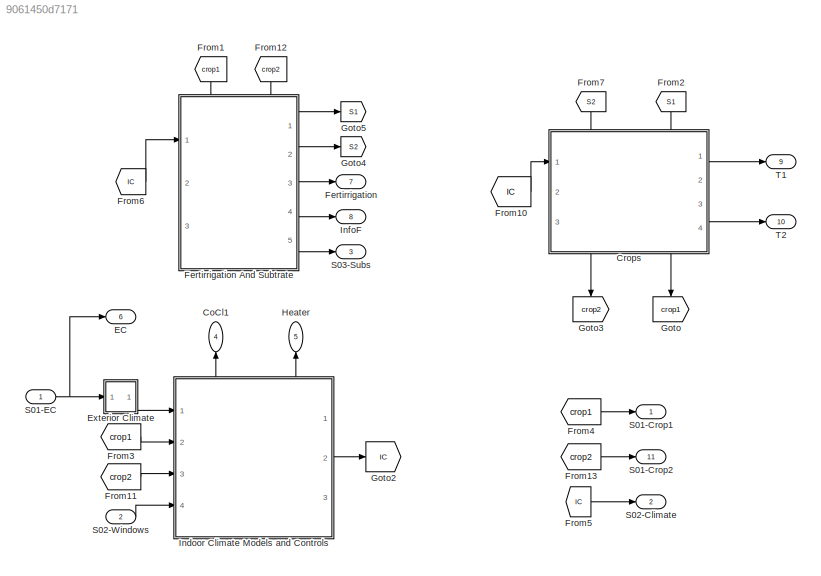
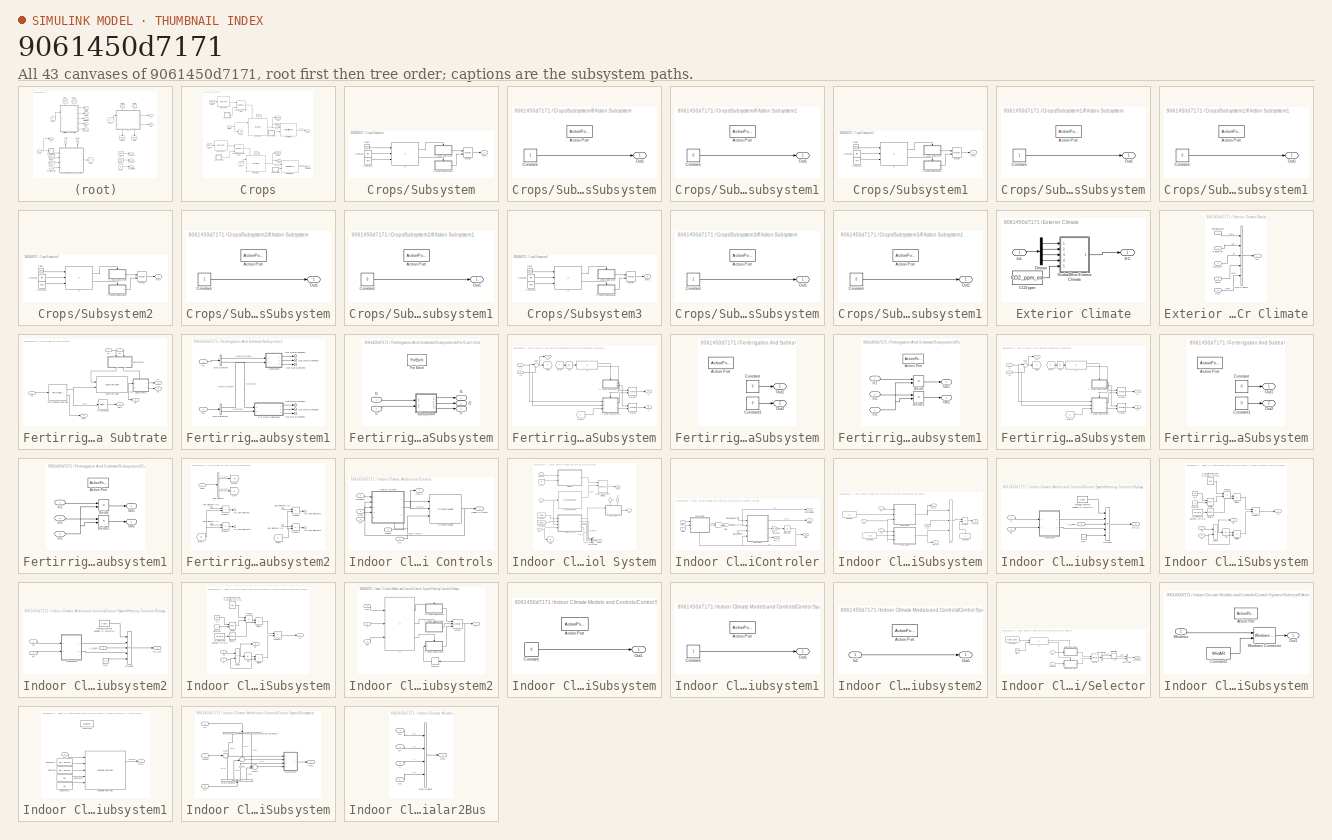
[diagram: thumbnail index - all 43 canvases of the model, root first then tree order]
MODEL slx_9061450d7171
KIND model
CONFIG AbsTol = auto
CONFIG EnableMultiTasking = off
CONFIG FixedStep = auto
CONFIG MaxStep = auto
CONFIG MinStep = auto
CONFIG RelTol = 1e-3
CONFIG SampleTimeConstraint = Unconstrained
CONFIG SolverName = ode23
CONFIG StartTime = 0.0
CONFIG StopTime = tspan(end)
WORKSPACE source: mxarray member
WORKSPACE clima__A_c = 3295.16408265
WORKSPACE clima__A_f = 3100.53942116
WORKSPACE clima__G0 = [0.05 0.00070738]
WORKSPACE clima__H = 7.9995824611
WORKSPACE clima__T0 = [287.15 287.15 287.15 287.15]
WORKSPACE clima__T_ss = 280.150340169
WORKSPACE clima__alpha_c = 0.0100640347387
WORKSPACE clima__alpha_f = 0.0111385012129
WORKSPACE clima__alpha_i = 0.1
WORKSPACE clima__c_s = [1081 1081]
WORKSPACE clima__cd_c = 8736
WORKSPACE clima__d_c = 1.5
WORKSPACE clima__hour0 = 1
WORKSPACE clima__int_air_speed = 0.5
WORKSPACE clima__l_s = [0.1 0.1]
WORKSPACE clima__lam_s = [2.5 0.85]
WORKSPACE clima__minWindows = 0.299965865643
WORKSPACE clima__rhod_s = [2600 2500]
WORKSPACE clima__tau_c = 1
WORKSPACE crop__A_v = 2080
WORKSPACE crop__C = [0.01 0.001 0.01 0.01]
WORKSPACE crop__C_buf_max = 0.02
WORKSPACE crop__C_wv = 0.2
WORKSPACE crop__Chi_nutrients = [0.015625 0.0104166666667 0.00520833333333 0.00208333333333 0.00208333333333 0.00104166666667 0 0]
WORKSPACE crop__N = [0 0 0 0 0 0 0 0]
WORKSPACE crop__R = [0 0 0]
WORKSPACE crop__T_max_v = 40
WORKSPACE crop__T_max_v24 = 27
WORKSPACE crop__T_min_v = 6
WORKSPACE crop__T_min_v24 = 14
WORKSPACE crop__T_sum_end = 1035
WORKSPACE crop__T_v_start_fruit = 1100
WORKSPACE crop__Tsum = 0
WORKSPACE crop__Tv = 288
WORKSPACE crop__b_N_uptake = 0.5
WORKSPACE crop__c_fruit_g = 0.27
WORKSPACE crop__c_fruit_m = 2.3e-07
WORKSPACE crop__c_leaf_g = 0.28
WORKSPACE crop__c_leaf_m = 3.47e-07
WORKSPACE crop__c_stem_g = 0.3
WORKSPACE crop__c_stem_m = 1.47e-07
WORKSPACE crop__fraction_DM = 0.08
WORKSPACE crop__int_air_speed = 0.5
WORKSPACE crop__min_water_capacity = 0.1
WORKSPACE crop__plants_density = 2.1562
WORKSPACE crop__rg_fruit = 2e-07
WORKSPACE crop__rg_leaf = 9.5e-08
WORKSPACE crop__rg_stem = 7.4e-08
WORKSPACE crop__s_buforg_buf = -5000
WORKSPACE crop__s_max_T = 0.5793
WORKSPACE crop__s_max_T24 = 1.3904
WORKSPACE crop__s_min_T = -0.869
WORKSPACE crop__s_min_T24 = -1.1587
WORKSPACE heater__A_e = 0.0001
WORKSPACE heater__A_i = 0.008
WORKSPACE heater__T = 288
WORKSPACE heater__c = 5e-10
WORKSPACE heater__power = 60000000
WORKSPACE screen__Power = 100
WORKSPACE screen__Radthreshold = 900
WORKSPACE screen__beta = 2.23564167038e-14
WORKSPACE screen__gamma_max = 2.26308905438e-14
WORKSPACE screen__velocity = 0.333333333333
WORKSPACE subtrate__C_ws = 0.1
WORKSPACE subtrate__N = [0 0 0 0 0 0 0 0]
WORKSPACE subtrate__Nmin_subs = 1e-09
WORKSPACE subtrate__Vmax_subs = 10
WORKSPACE subtrate__Vmin_subs = 0.01
WORKSPACE subtrate__sigma_max = 1
WORKSPACE subtrate__sigma_min = 1
WORKSPACE tomato__Cfruit0 = 0.001
WORKSPACE windows__AR = 19.9974923936
WORKSPACE windows__Power = 100
WORKSPACE windows__RadThreshold = 10
WORKSPACE windows__max_night = 10
WORKSPACE windows__tau = 600
BLOCK [Outport] CoCl1
  NameLocation = right
  Port = 4
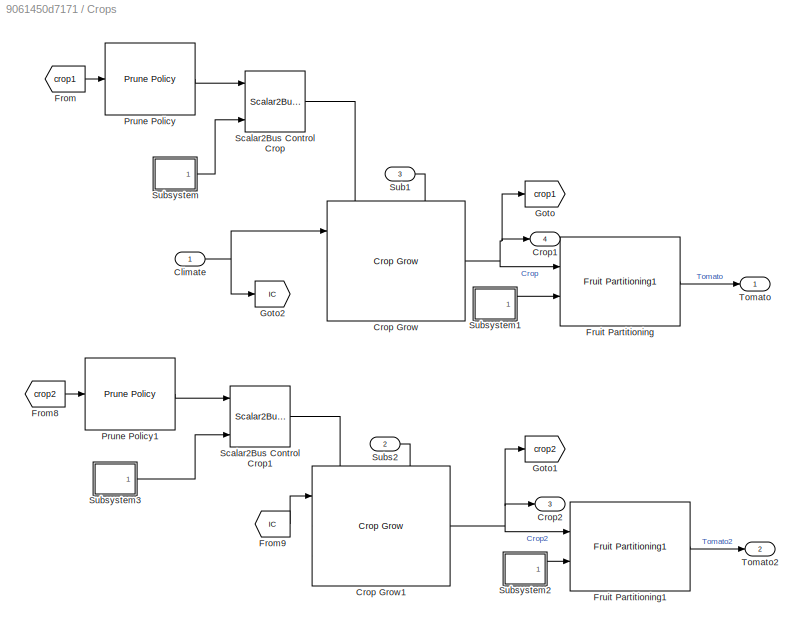
BLOCK [SubSystem] Crops
  PortSchema = {"entries":[{"content":{"sides":[{"content":{"connectorIds":["In1"]},"type":"ConnectorPlacement.EquallySpacedRectSide","uuid":"80596a6c-707e-446a-ab87-7a25f59fcc32"},{"content":{"connectorIds":["Out1","Out2"],"side":"RIGHT"},"type":"ConnectorPlacement.EquallySpacedRectSide","uuid":"b8326ebd-de89-4eeb-b2a4-cbf566e8a818"},{"content":{"connectorIds":["In2","In3"],"side":"TOP"},"type":"ConnectorPlacem...<+415ch>
  Ports = [3, 4]
  RequestExecContextInheritance = off
BLOCK [Inport] Crops/Climate
BLOCK [Reference] Crops/Crop Grow  REF=HORTISIM/Horticulture/Models/Crop Grow
  Ports = [3, 1]
  SourceBlock = HORTISIM/Horticulture/Models/Crop Grow
  SourceProductName = Horti Simulator
BLOCK [Reference] Crops/Crop Grow1  REF=HORTISIM/Horticulture/Models/Crop Grow
  Ports = [3, 1]
  SourceBlock = HORTISIM/Horticulture/Models/Crop Grow
  SourceProductName = Horti Simulator
BLOCK [Outport] Crops/Crop1
  Port = 4
BLOCK [Outport] Crops/Crop2
  Port = 3
BLOCK [From] Crops/From
  GotoTag = crop1
BLOCK [From] Crops/From8
  GotoTag = crop2
BLOCK [From] Crops/From9
  GotoTag = IC
BLOCK [Reference] Crops/Fruit Partitioning  REF=HORTISIM/Horticulture/Models/Fruit Partitioning1
  Ports = [2, 1]
  SourceBlock = HORTISIM/Horticulture/Models/Fruit Partitioning1
  SourceProductName = Horti Simulator
BLOCK [Reference] Crops/Fruit Partitioning1  REF=HORTISIM/Horticulture/Models/Fruit Partitioning1
  Ports = [2, 1]
  SourceBlock = HORTISIM/Horticulture/Models/Fruit Partitioning1
  SourceProductName = Horti Simulator
BLOCK [Goto] Crops/Goto
  GotoTag = crop1
BLOCK [Goto] Crops/Goto1
  GotoTag = crop2
BLOCK [Goto] Crops/Goto2
  GotoTag = IC
BLOCK [Reference] Crops/Prune Policy  REF=HORTISIM/Horticulture/Controls/Prune
Policy
  Ports = [1, 1]
  SourceBlock = HORTISIM/Horticulture/Controls/Prune\nPolicy
  SourceProductName = Horti Simulator
BLOCK [Reference] Crops/Prune Policy1  REF=HORTISIM/Horticulture/Controls/Prune
Policy
  Ports = [1, 1]
  SourceBlock = HORTISIM/Horticulture/Controls/Prune\nPolicy
  SourceProductName = Horti Simulator
BLOCK [Reference] Crops/Scalar2Bus Control Crop  REF=HORTISIM/Other 
Functions/Scalar2Bus
Control Crop
  Ports = [4, 1]
  SourceBlock = HORTISIM/Other \nFunctions/Scalar2Bus\nControl Crop
  SourceProductName = Horti Simulator
  SourceType = SubSystem
BLOCK [Reference] Crops/Scalar2Bus Control Crop1  REF=HORTISIM/Other 
Functions/Scalar2Bus
Control Crop
  Ports = [4, 1]
  SourceBlock = HORTISIM/Other \nFunctions/Scalar2Bus\nControl Crop
  SourceProductName = Horti Simulator
  SourceType = SubSystem
BLOCK [Inport] Crops/Sub1
  Port = 3
BLOCK [Inport] Crops/Subs2
  Port = 2
BLOCK [SubSystem] Crops/Subsystem
  Ports = [0, 1]
  RequestExecContextInheritance = off
BLOCK [Clock] Crops/Subsystem/Clock
BLOCK [Constant] Crops/Subsystem/Constant
  Value = tinit
BLOCK [Constant] Crops/Subsystem/Constant1
  Value = tend
BLOCK [If] Crops/Subsystem/If
  IfExpression = (u1>u2)&(u1<u3)
  NumInputs = 3
  Ports = [3, 2]
BLOCK [SubSystem] Crops/Subsystem/If Action Subsystem
  Ports = [0, 1, 0, 0, 0, 0, 0, 1]
  RequestExecContextInheritance = off
  TreatAsAtomicUnit = on
BLOCK [ActionPort] Crops/Subsystem/If Action Subsystem/Action Port
  ActionPortLabel = if((u1>u2)&(u1<u3))
BLOCK [Constant] Crops/Subsystem/If Action Subsystem/Constant
BLOCK [Outport] Crops/Subsystem/If Action Subsystem/Out1
BLOCK [SubSystem] Crops/Subsystem/If Action Subsystem1
  Ports = [0, 1, 0, 0, 0, 0, 0, 1]
  RequestExecContextInheritance = off
  TreatAsAtomicUnit = on
BLOCK [ActionPort] Crops/Subsystem/If Action Subsystem1/Action Port
  ActionPortLabel = else
BLOCK [Constant] Crops/Subsystem/If Action Subsystem1/Constant
  Value = 0
BLOCK [Outport] Crops/Subsystem/If Action Subsystem1/Out1
BLOCK [Merge] Crops/Subsystem/Merge
  Ports = [2, 1]
BLOCK [Outport] Crops/Subsystem/Out1
BLOCK [SubSystem] Crops/Subsystem1
  Ports = [0, 1]
  RequestExecContextInheritance = off
BLOCK [Clock] Crops/Subsystem1/Clock
BLOCK [Constant] Crops/Subsystem1/Constant
  Value = tinit
BLOCK [Constant] Crops/Subsystem1/Constant1
  Value = tend
BLOCK [If] Crops/Subsystem1/If
  IfExpression = (u1>u2)&(u1<u3)
  NumInputs = 3
  Ports = [3, 2]
BLOCK [SubSystem] Crops/Subsystem1/If Action Subsystem
  Ports = [0, 1, 0, 0, 0, 0, 0, 1]
  RequestExecContextInheritance = off
  TreatAsAtomicUnit = on
BLOCK [ActionPort] Crops/Subsystem1/If Action Subsystem/Action Port
  ActionPortLabel = if((u1>u2)&(u1<u3))
BLOCK [Constant] Crops/Subsystem1/If Action Subsystem/Constant
BLOCK [Outport] Crops/Subsystem1/If Action Subsystem/Out1
BLOCK [SubSystem] Crops/Subsystem1/If Action Subsystem1
  Ports = [0, 1, 0, 0, 0, 0, 0, 1]
  RequestExecContextInheritance = off
  TreatAsAtomicUnit = on
BLOCK [ActionPort] Crops/Subsystem1/If Action Subsystem1/Action Port
  ActionPortLabel = else
BLOCK [Constant] Crops/Subsystem1/If Action Subsystem1/Constant
  Value = 0
BLOCK [Outport] Crops/Subsystem1/If Action Subsystem1/Out1
BLOCK [Merge] Crops/Subsystem1/Merge
  Ports = [2, 1]
BLOCK [Outport] Crops/Subsystem1/Out1
BLOCK [SubSystem] Crops/Subsystem2
  Ports = [0, 1]
  RequestExecContextInheritance = off
BLOCK [Clock] Crops/Subsystem2/Clock
BLOCK [Constant] Crops/Subsystem2/Constant
  Value = tinit
BLOCK [Constant] Crops/Subsystem2/Constant1
  Value = tend
BLOCK [If] Crops/Subsystem2/If
  IfExpression = (u1>u2)&(u1<u3)
  NumInputs = 3
  Ports = [3, 2]
BLOCK [SubSystem] Crops/Subsystem2/If Action Subsystem
  Ports = [0, 1, 0, 0, 0, 0, 0, 1]
  RequestExecContextInheritance = off
  TreatAsAtomicUnit = on
BLOCK [ActionPort] Crops/Subsystem2/If Action Subsystem/Action Port
  ActionPortLabel = if((u1>u2)&(u1<u3))
BLOCK [Constant] Crops/Subsystem2/If Action Subsystem/Constant
BLOCK [Outport] Crops/Subsystem2/If Action Subsystem/Out1
BLOCK [SubSystem] Crops/Subsystem2/If Action Subsystem1
  Ports = [0, 1, 0, 0, 0, 0, 0, 1]
  RequestExecContextInheritance = off
  TreatAsAtomicUnit = on
BLOCK [ActionPort] Crops/Subsystem2/If Action Subsystem1/Action Port
  ActionPortLabel = else
BLOCK [Constant] Crops/Subsystem2/If Action Subsystem1/Constant
  Value = 0
BLOCK [Outport] Crops/Subsystem2/If Action Subsystem1/Out1
BLOCK [Merge] Crops/Subsystem2/Merge
  Ports = [2, 1]
BLOCK [Outport] Crops/Subsystem2/Out1
BLOCK [SubSystem] Crops/Subsystem3
  Ports = [0, 1]
  RequestExecContextInheritance = off
BLOCK [Clock] Crops/Subsystem3/Clock
BLOCK [Constant] Crops/Subsystem3/Constant
  Value = tinit
BLOCK [Constant] Crops/Subsystem3/Constant1
  Value = tend
BLOCK [If] Crops/Subsystem3/If
  IfExpression = (u1>u2)&(u1<u3)
  NumInputs = 3
  Ports = [3, 2]
BLOCK [SubSystem] Crops/Subsystem3/If Action Subsystem
  Ports = [0, 1, 0, 0, 0, 0, 0, 1]
  RequestExecContextInheritance = off
  TreatAsAtomicUnit = on
BLOCK [ActionPort] Crops/Subsystem3/If Action Subsystem/Action Port
  ActionPortLabel = if((u1>u2)&(u1<u3))
BLOCK [Constant] Crops/Subsystem3/If Action Subsystem/Constant
BLOCK [Outport] Crops/Subsystem3/If Action Subsystem/Out1
BLOCK [SubSystem] Crops/Subsystem3/If Action Subsystem1
  Ports = [0, 1, 0, 0, 0, 0, 0, 1]
  RequestExecContextInheritance = off
  TreatAsAtomicUnit = on
BLOCK [ActionPort] Crops/Subsystem3/If Action Subsystem1/Action Port
  ActionPortLabel = else
BLOCK [Constant] Crops/Subsystem3/If Action Subsystem1/Constant
  Value = 0
BLOCK [Outport] Crops/Subsystem3/If Action Subsystem1/Out1
BLOCK [Merge] Crops/Subsystem3/Merge
  Ports = [2, 1]
BLOCK [Outport] Crops/Subsystem3/Out1
BLOCK [Outport] Crops/Tomato
BLOCK [Outport] Crops/Tomato2
  Port = 2
BLOCK [Outport] EC
  Port = 6
BLOCK [SubSystem] Exterior Climate
  NameLocation = top
  Ports = [1, 1]
  RequestExecContextInheritance = off
BLOCK [Constant] Exterior Climate/CO2 ppm
  Value = CO2_ppm_ext
BLOCK [Demux] Exterior Climate/Demux
  Ports = [1, 4]
BLOCK [Outport] Exterior Climate/EC
BLOCK [Inport] Exterior Climate/In1
BLOCK [SubSystem] Exterior Climate/Scalar2Bus Exterior Climate
  Ports = [5, 1]
  RequestExecContextInheritance = off
BLOCK [BusCreator] Exterior Climate/Scalar2Bus Exterior Climate/Bus Creator
  DisplayOption = bar
  InheritFromInputs = on
  Inputs = 5
  Ports = [5, 1]
BLOCK [Inport] Exterior Climate/Scalar2Bus Exterior Climate/CO2
  Port = 5
BLOCK [Outport] Exterior Climate/Scalar2Bus Exterior Climate/EC
BLOCK [Inport] Exterior Climate/Scalar2Bus Exterior Climate/Humidity
  Port = 4
BLOCK [Inport] Exterior Climate/Scalar2Bus Exterior Climate/Radiation
  Port = 2
BLOCK [Inport] Exterior Climate/Scalar2Bus Exterior Climate/Temperature
BLOCK [Inport] Exterior Climate/Scalar2Bus Exterior Climate/Wind
  Port = 3
BLOCK [Outport] Fertirrigation
  Port = 7
BLOCK [SubSystem] Fertirrigation And Subtrate
  PortSchema = {"entries":[{"content":{"sides":[{"content":{"connectorIds":["In1"]},"type":"ConnectorPlacement.EquallySpacedRectSide","uuid":"80596a6c-707e-446a-ab87-7a25f59fcc32"},{"content":{"connectorIds":["Out1","Out2","Out3","Out4","Out5"],"side":"RIGHT"},"type":"ConnectorPlacement.EquallySpacedRectSide","uuid":"b8326ebd-de89-4eeb-b2a4-cbf566e8a818"},{"content":{"connectorIds":["In2","In3"],"side":"TOP"},"t...<+279ch>
  Ports = [3, 5]
  RequestExecContextInheritance = off
BLOCK [Inport] Fertirrigation And Subtrate/C1
  Port = 2
BLOCK [Inport] Fertirrigation And Subtrate/C2
  Port = 3
BLOCK [Reference] Fertirrigation And Subtrate/Ferrtirrigation Controler  REF=HORTISIM/Horticulture/Controls/Ferrtirrigation
 Controler
  NameLocation = top
  Ports = [1, 2]
  SourceBlock = HORTISIM/Horticulture/Controls/Ferrtirrigation\n Controler
  SourceProductName = Horti Simulator
BLOCK [Outport] Fertirrigation And Subtrate/Ferti
  Port = 3
BLOCK [Inport] Fertirrigation And Subtrate/IC
BLOCK [Outport] Fertirrigation And Subtrate/Info
  Port = 4
BLOCK [Outport] Fertirrigation And Subtrate/S1
BLOCK [Outport] Fertirrigation And Subtrate/S2
  Port = 2
BLOCK [Outport] Fertirrigation And Subtrate/ST
  Port = 5
BLOCK [Reference] Fertirrigation And Subtrate/Substrate Bag  REF=HORTISIM/Horticulture/Models/Substrate Bag
  Ports = [2, 1]
  SourceBlock = HORTISIM/Horticulture/Models/Substrate Bag
  SourceProductName = Horti Simulator
BLOCK [SubSystem] Fertirrigation And Subtrate/Subsystem1
  NameLocation = left
  Ports = [2, 2]
  RequestExecContextInheritance = off
BLOCK [BusSelector] Fertirrigation And Subtrate/Subsystem1/Bus Selector
  OutputSignals = Water.WaterFlows.WaterDemand,Nutrients.Demand
  Ports = [1, 2]
BLOCK [BusSelector] Fertirrigation And Subtrate/Subsystem1/Bus Selector1
  OutputSignals = Water.WaterFlows.WaterDemand,Nutrients.Demand
  Ports = [1, 2]
BLOCK [SubSystem] Fertirrigation And Subtrate/Subsystem1/For Each Subsystem
  Ports = [2, 3]
  RequestExecContextInheritance = off
  TreatAsAtomicUnit = on
BLOCK [ForEach] Fertirrigation And Subtrate/Subsystem1/For Each Subsystem/For Each
  DisableCoverage = on
  Ports = []
BLOCK [Inport] Fertirrigation And Subtrate/Subsystem1/For Each Subsystem/I1
  Partition = on
  PartitionDimension = 1
  PartitionOffset = 0
  PartitionWidth = 1
BLOCK [Inport] Fertirrigation And Subtrate/Subsystem1/For Each Subsystem/I2
  Partition = on
  PartitionDimension = 1
  PartitionOffset = 0
  PartitionWidth = 1
  Port = 2
BLOCK [SubSystem] Fertirrigation And Subtrate/Subsystem1/For Each Subsystem/Subsystem
  Ports = [2, 3]
  RequestExecContextInheritance = off
BLOCK [Abs] Fertirrigation And Subtrate/Subsystem1/For Each Subsystem/Subsystem/Abs
  SaturateOnIntegerOverflow = off
  ZeroCross = off
BLOCK [From] Fertirrigation And Subtrate/Subsystem1/For Each Subsystem/Subsystem/From
  GotoTag = T
BLOCK [From] Fertirrigation And Subtrate/Subsystem1/For Each Subsystem/Subsystem/From1
  GotoTag = T
BLOCK [Goto] Fertirrigation And Subtrate/Subsystem1/For Each Subsystem/Subsystem/Goto
  GotoTag = T
BLOCK [Inport] Fertirrigation And Subtrate/Subsystem1/For Each Subsystem/Subsystem/I1
BLOCK [Inport] Fertirrigation And Subtrate/Subsystem1/For Each Subsystem/Subsystem/I2
  Port = 2
BLOCK [If] Fertirrigation And Subtrate/Subsystem1/For Each Subsystem/Subsystem/If
  IfExpression = u1 < 1e-9
  Ports = [1, 2]
  ZeroCross = off
BLOCK [SubSystem] Fertirrigation And Subtrate/Subsystem1/For Each Subsystem/Subsystem/If Action Subsystem
  Ports = [0, 2, 0, 0, 0, 0, 0, 1]
  RequestExecContextInheritance = off
  TreatAsAtomicUnit = on
BLOCK [ActionPort] Fertirrigation And Subtrate/Subsystem1/For Each Subsystem/Subsystem/If Action Subsystem/Action Port
  ActionPortLabel = if(u1 < 1e-9)
BLOCK [Constant] Fertirrigation And Subtrate/Subsystem1/For Each Subsystem/Subsystem/If Action Subsystem/Constant
  Value = 0
BLOCK [Constant] Fertirrigation And Subtrate/Subsystem1/For Each Subsystem/Subsystem/If Action Subsystem/Constant1
  Value = 0
BLOCK [Outport] Fertirrigation And Subtrate/Subsystem1/For Each Subsystem/Subsystem/If Action Subsystem/Out1
BLOCK [Outport] Fertirrigation And Subtrate/Subsystem1/For Each Subsystem/Subsystem/If Action Subsystem/Out2
  Port = 2
BLOCK [SubSystem] Fertirrigation And Subtrate/Subsystem1/For Each Subsystem/Subsystem/If Action Subsystem1
  Ports = [3, 2, 0, 0, 0, 0, 0, 1]
  RequestExecContextInheritance = off
  TreatAsAtomicUnit = on
BLOCK [ActionPort] Fertirrigation And Subtrate/Subsystem1/For Each Subsystem/Subsystem/If Action Subsystem1/Action Port
  ActionPortLabel = else
BLOCK [Product] Fertirrigation And Subtrate/Subsystem1/For Each Subsystem/Subsystem/If Action Subsystem1/Divide
  Inputs = */
  Ports = [2, 1]
BLOCK [Product] Fertirrigation And Subtrate/Subsystem1/For Each Subsystem/Subsystem/If Action Subsystem1/Divide1
  Inputs = */
  Ports = [2, 1]
BLOCK [Inport] Fertirrigation And Subtrate/Subsystem1/For Each Subsystem/Subsystem/If Action Subsystem1/In1
BLOCK [Inport] Fertirrigation And Subtrate/Subsystem1/For Each Subsystem/Subsystem/If Action Subsystem1/In2
  Port = 2
BLOCK [Inport] Fertirrigation And Subtrate/Subsystem1/For Each Subsystem/Subsystem/If Action Subsystem1/In3
  Port = 3
BLOCK [Outport] Fertirrigation And Subtrate/Subsystem1/For Each Subsystem/Subsystem/If Action Subsystem1/Out1
BLOCK [Outport] Fertirrigation And Subtrate/Subsystem1/For Each Subsystem/Subsystem/If Action Subsystem1/Out2
  Port = 2
BLOCK [Merge] Fertirrigation And Subtrate/Subsystem1/For Each Subsystem/Subsystem/Merge
  Ports = [2, 1]
BLOCK [Merge] Fertirrigation And Subtrate/Subsystem1/For Each Subsystem/Subsystem/Merge1
  Ports = [2, 1]
BLOCK [Sum] Fertirrigation And Subtrate/Subsystem1/For Each Subsystem/Subsystem/Sum
  Inputs = |++
  Ports = [2, 1]
BLOCK [Outport] Fertirrigation And Subtrate/Subsystem1/For Each Subsystem/Subsystem/f1
BLOCK [Outport] Fertirrigation And Subtrate/Subsystem1/For Each Subsystem/Subsystem/f2
  Port = 2
BLOCK [Outport] Fertirrigation And Subtrate/Subsystem1/For Each Subsystem/Subsystem/fT
  Port = 3
BLOCK [Outport] Fertirrigation And Subtrate/Subsystem1/For Each Subsystem/f1
  ConcatenationDimension = 1
BLOCK [Outport] Fertirrigation And Subtrate/Subsystem1/For Each Subsystem/f2
  ConcatenationDimension = 1
  Port = 2
BLOCK [Outport] Fertirrigation And Subtrate/Subsystem1/For Each Subsystem/fT
  ConcatenationDimension = 1
  Port = 3
BLOCK [Inport] Fertirrigation And Subtrate/Subsystem1/In1
BLOCK [Inport] Fertirrigation And Subtrate/Subsystem1/In2
  Port = 2
BLOCK [Outport] Fertirrigation And Subtrate/Subsystem1/Out Bus Element
BLOCK [Outport] Fertirrigation And Subtrate/Subsystem1/Out Bus Element1
BLOCK [Outport] Fertirrigation And Subtrate/Subsystem1/Out Bus Element2
  Port = 2
BLOCK [Outport] Fertirrigation And Subtrate/Subsystem1/Out Bus Element3
  Port = 2
BLOCK [Outport] Fertirrigation And Subtrate/Subsystem1/Out Bus Element4
  Port = 2
BLOCK [Outport] Fertirrigation And Subtrate/Subsystem1/Out Bus Element5
  Port = 2
BLOCK [SubSystem] Fertirrigation And Subtrate/Subsystem1/Subsystem
  Ports = [2, 3]
  RequestExecContextInheritance = off
BLOCK [Abs] Fertirrigation And Subtrate/Subsystem1/Subsystem/Abs
  SaturateOnIntegerOverflow = off
  ZeroCross = off
BLOCK [From] Fertirrigation And Subtrate/Subsystem1/Subsystem/From
  GotoTag = T
BLOCK [From] Fertirrigation And Subtrate/Subsystem1/Subsystem/From1
  GotoTag = T
BLOCK [Goto] Fertirrigation And Subtrate/Subsystem1/Subsystem/Goto
  GotoTag = T
BLOCK [Inport] Fertirrigation And Subtrate/Subsystem1/Subsystem/I1
BLOCK [Inport] Fertirrigation And Subtrate/Subsystem1/Subsystem/I2
  Port = 2
BLOCK [If] Fertirrigation And Subtrate/Subsystem1/Subsystem/If
  IfExpression = u1 < 1e-9
  Ports = [1, 2]
  ZeroCross = off
BLOCK [SubSystem] Fertirrigation And Subtrate/Subsystem1/Subsystem/If Action Subsystem
  Ports = [0, 2, 0, 0, 0, 0, 0, 1]
  RequestExecContextInheritance = off
  TreatAsAtomicUnit = on
BLOCK [ActionPort] Fertirrigation And Subtrate/Subsystem1/Subsystem/If Action Subsystem/Action Port
  ActionPortLabel = if(u1 < 1e-9)
BLOCK [Constant] Fertirrigation And Subtrate/Subsystem1/Subsystem/If Action Subsystem/Constant
  Value = 0
BLOCK [Constant] Fertirrigation And Subtrate/Subsystem1/Subsystem/If Action Subsystem/Constant1
  Value = 0
BLOCK [Outport] Fertirrigation And Subtrate/Subsystem1/Subsystem/If Action Subsystem/Out1
BLOCK [Outport] Fertirrigation And Subtrate/Subsystem1/Subsystem/If Action Subsystem/Out2
  Port = 2
BLOCK [SubSystem] Fertirrigation And Subtrate/Subsystem1/Subsystem/If Action Subsystem1
  Ports = [3, 2, 0, 0, 0, 0, 0, 1]
  RequestExecContextInheritance = off
  TreatAsAtomicUnit = on
BLOCK [ActionPort] Fertirrigation And Subtrate/Subsystem1/Subsystem/If Action Subsystem1/Action Port
  ActionPortLabel = else
BLOCK [Product] Fertirrigation And Subtrate/Subsystem1/Subsystem/If Action Subsystem1/Divide
  Inputs = */
  Ports = [2, 1]
BLOCK [Product] Fertirrigation And Subtrate/Subsystem1/Subsystem/If Action Subsystem1/Divide1
  Inputs = */
  Ports = [2, 1]
BLOCK [Inport] Fertirrigation And Subtrate/Subsystem1/Subsystem/If Action Subsystem1/In1
BLOCK [Inport] Fertirrigation And Subtrate/Subsystem1/Subsystem/If Action Subsystem1/In2
  Port = 2
BLOCK [Inport] Fertirrigation And Subtrate/Subsystem1/Subsystem/If Action Subsystem1/In3
  Port = 3
BLOCK [Outport] Fertirrigation And Subtrate/Subsystem1/Subsystem/If Action Subsystem1/Out1
BLOCK [Outport] Fertirrigation And Subtrate/Subsystem1/Subsystem/If Action Subsystem1/Out2
  Port = 2
BLOCK [Merge] Fertirrigation And Subtrate/Subsystem1/Subsystem/Merge
  Ports = [2, 1]
BLOCK [Merge] Fertirrigation And Subtrate/Subsystem1/Subsystem/Merge1
  Ports = [2, 1]
BLOCK [Sum] Fertirrigation And Subtrate/Subsystem1/Subsystem/Sum
  Inputs = |++
  Ports = [2, 1]
BLOCK [Outport] Fertirrigation And Subtrate/Subsystem1/Subsystem/f1
BLOCK [Outport] Fertirrigation And Subtrate/Subsystem1/Subsystem/f2
  Port = 2
BLOCK [Outport] Fertirrigation And Subtrate/Subsystem1/Subsystem/fT
  Port = 3
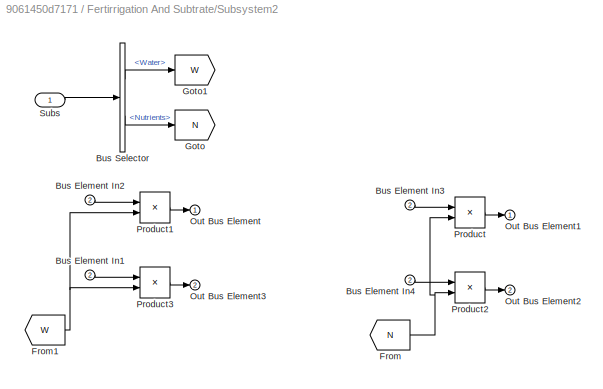
BLOCK [SubSystem] Fertirrigation And Subtrate/Subsystem2
  PortSchema = {"entries":[{"content":{"sides":[{"content":{"connectorIds":["In1"]},"type":"ConnectorPlacement.EquallySpacedRectSide","uuid":"526c2ba0-7984-4a67-b75e-815cf79b4473"},{"content":{"connectorIds":["Out1","Out2"],"side":"RIGHT"},"type":"ConnectorPlacement.EquallySpacedRectSide","uuid":"1f428ce7-4be7-4b4c-9b6b-ebbf12a2ebe7"},{"content":{"connectorIds":["In2"],"side":"TOP"},"type":"ConnectorPlacement.Eq...<+252ch>
  Ports = [2, 2]
  RequestExecContextInheritance = off
BLOCK [Inport] Fertirrigation And Subtrate/Subsystem2/Bus Element In1
  Port = 2
BLOCK [Inport] Fertirrigation And Subtrate/Subsystem2/Bus Element In2
  Port = 2
BLOCK [Inport] Fertirrigation And Subtrate/Subsystem2/Bus Element In3
  Port = 2
BLOCK [Inport] Fertirrigation And Subtrate/Subsystem2/Bus Element In4
  Port = 2
BLOCK [BusSelector] Fertirrigation And Subtrate/Subsystem2/Bus Selector
  OutputSignals = Uptake.Water,Uptake.Nutrients
  Ports = [1, 2]
BLOCK [From] Fertirrigation And Subtrate/Subsystem2/From
  GotoTag = N
BLOCK [From] Fertirrigation And Subtrate/Subsystem2/From1
  GotoTag = W
BLOCK [Goto] Fertirrigation And Subtrate/Subsystem2/Goto
  GotoTag = N
BLOCK [Goto] Fertirrigation And Subtrate/Subsystem2/Goto1
  GotoTag = W
BLOCK [Outport] Fertirrigation And Subtrate/Subsystem2/Out Bus Element
BLOCK [Outport] Fertirrigation And Subtrate/Subsystem2/Out Bus Element1
BLOCK [Outport] Fertirrigation And Subtrate/Subsystem2/Out Bus Element2
  Port = 2
BLOCK [Outport] Fertirrigation And Subtrate/Subsystem2/Out Bus Element3
  Port = 2
BLOCK [Product] Fertirrigation And Subtrate/Subsystem2/Product
  Ports = [2, 1]
BLOCK [Product] Fertirrigation And Subtrate/Subsystem2/Product1
  Ports = [2, 1]
BLOCK [Product] Fertirrigation And Subtrate/Subsystem2/Product2
  Ports = [2, 1]
BLOCK [Product] Fertirrigation And Subtrate/Subsystem2/Product3
  Ports = [2, 1]
BLOCK [Inport] Fertirrigation And Subtrate/Subsystem2/Subs
BLOCK [SignalConversion] Fertirrigation And Subtrate/To Virtual Bus
  ConversionOutput = Virtual bus
  OverrideOpt = off
BLOCK [From] From1
  GotoTag = crop1
  NameLocation = left
BLOCK [From] From10
  GotoTag = IC
BLOCK [From] From11
  GotoTag = crop2
BLOCK [From] From12
  GotoTag = crop2
  NameLocation = left
BLOCK [From] From13
  GotoTag = crop2
BLOCK [From] From2
  GotoTag = S1
  NameLocation = left
BLOCK [From] From3
  GotoTag = crop1
BLOCK [From] From4
  GotoTag = crop1
BLOCK [From] From5
  GotoTag = IC
BLOCK [From] From6
  GotoTag = IC
BLOCK [From] From7
  GotoTag = S2
  NameLocation = left
BLOCK [Goto] Goto
  GotoTag = crop1
  NameLocation = left
BLOCK [Goto] Goto2
  GotoTag = IC
BLOCK [Goto] Goto3
  GotoTag = crop2
  NameLocation = left
BLOCK [Goto] Goto4
  GotoTag = S2
BLOCK [Goto] Goto5
  GotoTag = S1
BLOCK [Outport] Heater
  NameLocation = right
  Port = 5
BLOCK [SubSystem] Indoor Climate Models and Controls
  PortSchema = {"entries":[{"content":{"sides":[{"content":{"connectorIds":["In1","In2","In3","In4"]},"type":"ConnectorPlacement.EquallySpacedRectSide","uuid":"f3cdb665-05cd-4c14-b99e-86a7cbd305f2"},{"content":{"connectorIds":["Out1"],"side":"RIGHT"},"type":"ConnectorPlacement.EquallySpacedRectSide","uuid":"ae9c6689-db0e-4adc-94c4-95f30f4a2385"},{"content":{"connectorIds":["Out2","Out3"],"side":"TOP"},"type":"Co...<+271ch>
  Ports = [4, 3]
  RequestExecContextInheritance = off
BLOCK [Inport] Indoor Climate Models and Controls/C2
  Port = 3
BLOCK [Reference] Indoor Climate Models and Controls/Climate Model  REF=HORTISIM/Climate/Models/Climate Model
  Ports = [3, 1]
  SourceBlock = HORTISIM/Climate/Models/Climate Model
  SourceProductName = Horti Simulator
BLOCK [Outport] Indoor Climate Models and Controls/CoCl1
  Port = 2
BLOCK [SubSystem] Indoor Climate Models and Controls/Control System
  NameLocation = top
  PortSchema = {"entries":[{"content":{"sides":[{"content":{"connectorIds":["In1","In2","In3","In4"]},"type":"ConnectorPlacement.EquallySpacedRectSide","uuid":"7d0146e2-a53b-49ab-a7f4-04cd7ef00b9a"},{"content":{"connectorIds":["Out1","Out2"],"side":"RIGHT"},"type":"ConnectorPlacement.EquallySpacedRectSide","uuid":"fee587e2-4b5c-4140-8904-07609d427593"},{"content":{"connectorIds":[],"side":"TOP"},"type":"Connecto...<+421ch>
  Ports = [5, 3]
  RequestExecContextInheritance = off
BLOCK [BusCreator] Indoor Climate Models and Controls/Control System/Bus Creator
  DisplayOption = bar
  InheritFromInputs = on
  Inputs = 4
  Ports = [4, 1]
BLOCK [Inport] Indoor Climate Models and Controls/Control System/C1
  NameLocation = left
  Port = 3
BLOCK [Inport] Indoor Climate Models and Controls/Control System/C2
  NameLocation = left
  Port = 4
BLOCK [Outport] Indoor Climate Models and Controls/Control System/CoCl1
  Port = 2
BLOCK [Constant] Indoor Climate Models and Controls/Control System/Constant
  Value = Tmax
BLOCK [Constant] Indoor Climate Models and Controls/Control System/Constant1
  Value = Tstart
BLOCK [Inport] Indoor Climate Models and Controls/Control System/EC
  Port = 5
BLOCK [Outport] Indoor Climate Models and Controls/Control System/Ext
BLOCK [From] Indoor Climate Models and Controls/Control System/From
  GotoTag = IC
BLOCK [Goto] Indoor Climate Models and Controls/Control System/Goto
  GotoTag = IC
BLOCK [Outport] Indoor Climate Models and Controls/Control System/Heater
  Port = 3
BLOCK [SubSystem] Indoor Climate Models and Controls/Control System/Heating Controler
  AncestorBlock = HORTISIM/Climate/Controls/Heating Controler
  NameLocation = top
  Ports = [4, 4]
  RequestExecContextInheritance = off
BLOCK [Outport] Indoor Climate Models and Controls/Control System/Heating Controler/Consumptions
  Port = 2
BLOCK [Gain] Indoor Climate Models and Controls/Control System/Heating Controler/Gain
  Gain = power
BLOCK [Outport] Indoor Climate Models and Controls/Control System/Heating Controler/Heater
  Unit = J
BLOCK [Inport] Indoor Climate Models and Controls/Control System/Heating Controler/In Bus Element
  Port = 3
BLOCK [Inport] Indoor Climate Models and Controls/Control System/Heating Controler/In Bus Element1
  Port = 4
BLOCK [Integrator] Indoor Climate Models and Controls/Control System/Heating Controler/Integrator
  AbsoluteTolerance = 0.001
  InitialCondition = T
  Ports = [1, 1]
BLOCK [Outport] Indoor Climate Models and Controls/Control System/Heating Controler/QV_h_e
  Port = 4
BLOCK [Gain] Indoor Climate Models and Controls/Control System/Heating Controler/Sec2Days
  Gain = 24*3600
BLOCK [Outport] Indoor Climate Models and Controls/Control System/Heating Controler/State
  Port = 3
BLOCK [SubSystem] Indoor Climate Models and Controls/Control System/Heating Controler/Subsystem
  Ports = [4, 3]
  RequestExecContextInheritance = off
BLOCK [Constant] Indoor Climate Models and Controls/Control System/Heating Controler/Subsystem/Constant
  Value = A_i
BLOCK [Constant] Indoor Climate Models and Controls/Control System/Heating Controler/Subsystem/Constant1
  NameLocation = right
  Value = c
BLOCK [Constant] Indoor Climate Models and Controls/Control System/Heating Controler/Subsystem/Constant2
  Value = A_e
BLOCK [Product] Indoor Climate Models and Controls/Control System/Heating Controler/Subsystem/Product
  Ports = [2, 1]
BLOCK [Outport] Indoor Climate Models and Controls/Control System/Heating Controler/Subsystem/QV_h_e
  Port = 3
BLOCK [Outport] Indoor Climate Models and Controls/Control System/Heating Controler/Subsystem/QV_h_i
BLOCK [Inport] Indoor Climate Models and Controls/Control System/Heating Controler/Subsystem/Q_h
  Port = 2
BLOCK [SubSystem] Indoor Climate Models and Controls/Control System/Heating Controler/Subsystem/Subsystem1
  Ports = [3, 1]
  RequestExecContextInheritance = off
BLOCK [Inport] Indoor Climate Models and Controls/Control System/Heating Controler/Subsystem/Subsystem1/A_h_exp
  Port = 2
BLOCK [Product] Indoor Climate Models and Controls/Control System/Heating Controler/Subsystem/Subsystem1/Divide2
  Inputs = ****/
  Ports = [5, 1]
BLOCK [Outport] Indoor Climate Models and Controls/Control System/Heating Controler/Subsystem/Subsystem1/QV_h_i
BLOCK [SubSystem] Indoor Climate Models and Controls/Control System/Heating Controler/Subsystem/Subsystem1/Subsystem
  Ports = [2, 2]
  RequestExecContextInheritance = off
BLOCK [Constant] Indoor Climate Models and Controls/Control System/Heating Controler/Subsystem/Subsystem1/Subsystem/ nu kinematic viscosity [m^2//s]
  Value = 15.1e-6
BLOCK [Abs] Indoor Climate Models and Controls/Control System/Heating Controler/Subsystem/Subsystem1/Subsystem/Abs
  SaturateOnIntegerOverflow = off
BLOCK [Constant] Indoor Climate Models and Controls/Control System/Heating Controler/Subsystem/Subsystem1/Subsystem/Constant
  Value = 3
BLOCK [Product] Indoor Climate Models and Controls/Control System/Heating Controler/Subsystem/Subsystem1/Subsystem/Divide
  Inputs = */
  Ports = [2, 1]
BLOCK [Product] Indoor Climate Models and Controls/Control System/Heating Controler/Subsystem/Subsystem1/Subsystem/Divide1
  Inputs = */
  Ports = [2, 1]
BLOCK [Outport] Indoor Climate Models and Controls/Control System/Heating Controler/Subsystem/Subsystem1/Subsystem/Gr
BLOCK [Sum] Indoor Climate Models and Controls/Control System/Heating Controler/Subsystem/Subsystem1/Subsystem/Minus
  IconShape = rectangular
  Inputs = +-
  Ports = [2, 1]
BLOCK [Math] Indoor Climate Models and Controls/Control System/Heating Controler/Subsystem/Subsystem1/Subsystem/Power
  Operator = pow
  Ports = [2, 1]
BLOCK [Product] Indoor Climate Models and Controls/Control System/Heating Controler/Subsystem/Subsystem1/Subsystem/Product
  Ports = [2, 1]
BLOCK [Product] Indoor Climate Models and Controls/Control System/Heating Controler/Subsystem/Subsystem1/Subsystem/Product1
  Ports = [2, 1]
BLOCK [Math] Indoor Climate Models and Controls/Control System/Heating Controler/Subsystem/Subsystem1/Subsystem/Square
  Operator = square
  Ports = [1, 1]
BLOCK [Inport] Indoor Climate Models and Controls/Control System/Heating Controler/Subsystem/Subsystem1/Subsystem/Th
  Port = 2
BLOCK [Inport] Indoor Climate Models and Controls/Control System/Heating Controler/Subsystem/Subsystem1/Subsystem/Ti
BLOCK [Outport] Indoor Climate Models and Controls/Control System/Heating Controler/Subsystem/Subsystem1/Subsystem/dT
  Port = 2
BLOCK [Constant] Indoor Climate Models and Controls/Control System/Heating Controler/Subsystem/Subsystem1/Subsystem/d_h
  Value = 1.5
BLOCK [Constant] Indoor Climate Models and Controls/Control System/Heating Controler/Subsystem/Subsystem1/Subsystem/g acceleration due to gravity [m//s^2]
  Value = 9.81
BLOCK [Inport] Indoor Climate Models and Controls/Control System/Heating Controler/Subsystem/Subsystem1/Th
  Port = 3
BLOCK [Inport] Indoor Climate Models and Controls/Control System/Heating Controler/Subsystem/Subsystem1/Ti
BLOCK [Constant] Indoor Climate Models and Controls/Control System/Heating Controler/Subsystem/Subsystem1/d_h1
  Value = 1.5
BLOCK [Constant] Indoor Climate Models and Controls/Control System/Heating Controler/Subsystem/Subsystem1/lambda thermal conductivity of air [W//m//K]
  Value = 0.025
BLOCK [SubSystem] Indoor Climate Models and Controls/Control System/Heating Controler/Subsystem/Subsystem2
  Ports = [3, 1]
  RequestExecContextInheritance = off
BLOCK [Inport] Indoor Climate Models and Controls/Control System/Heating Controler/Subsystem/Subsystem2/A_h_exp
  Port = 2
BLOCK [Product] Indoor Climate Models and Controls/Control System/Heating Controler/Subsystem/Subsystem2/Divide2
  Inputs = ****/
  Ports = [5, 1]
BLOCK [Outport] Indoor Climate Models and Controls/Control System/Heating Controler/Subsystem/Subsystem2/QV_h_e
BLOCK [SubSystem] Indoor Climate Models and Controls/Control System/Heating Controler/Subsystem/Subsystem2/Subsystem
  Ports = [2, 2]
  RequestExecContextInheritance = off
BLOCK [Constant] Indoor Climate Models and Controls/Control System/Heating Controler/Subsystem/Subsystem2/Subsystem/ nu kinematic viscosity [m^2//s]
  Value = 15.1e-6
BLOCK [Abs] Indoor Climate Models and Controls/Control System/Heating Controler/Subsystem/Subsystem2/Subsystem/Abs
  SaturateOnIntegerOverflow = off
BLOCK [Constant] Indoor Climate Models and Controls/Control System/Heating Controler/Subsystem/Subsystem2/Subsystem/Constant
  Value = 3
BLOCK [Product] Indoor Climate Models and Controls/Control System/Heating Controler/Subsystem/Subsystem2/Subsystem/Divide
  Inputs = */
  Ports = [2, 1]
BLOCK [Product] Indoor Climate Models and Controls/Control System/Heating Controler/Subsystem/Subsystem2/Subsystem/Divide1
  Inputs = */
  Ports = [2, 1]
BLOCK [Outport] Indoor Climate Models and Controls/Control System/Heating Controler/Subsystem/Subsystem2/Subsystem/Gr
BLOCK [Sum] Indoor Climate Models and Controls/Control System/Heating Controler/Subsystem/Subsystem2/Subsystem/Minus
  IconShape = rectangular
  Inputs = +-
  Ports = [2, 1]
BLOCK [Math] Indoor Climate Models and Controls/Control System/Heating Controler/Subsystem/Subsystem2/Subsystem/Power
  Operator = pow
  Ports = [2, 1]
BLOCK [Product] Indoor Climate Models and Controls/Control System/Heating Controler/Subsystem/Subsystem2/Subsystem/Product
  Ports = [2, 1]
BLOCK [Product] Indoor Climate Models and Controls/Control System/Heating Controler/Subsystem/Subsystem2/Subsystem/Product1
  Ports = [2, 1]
BLOCK [Math] Indoor Climate Models and Controls/Control System/Heating Controler/Subsystem/Subsystem2/Subsystem/Square
  Operator = square
  Ports = [1, 1]
BLOCK [Inport] Indoor Climate Models and Controls/Control System/Heating Controler/Subsystem/Subsystem2/Subsystem/Th
  Port = 2
BLOCK [Inport] Indoor Climate Models and Controls/Control System/Heating Controler/Subsystem/Subsystem2/Subsystem/Ti
BLOCK [Outport] Indoor Climate Models and Controls/Control System/Heating Controler/Subsystem/Subsystem2/Subsystem/dT
  Port = 2
BLOCK [Constant] Indoor Climate Models and Controls/Control System/Heating Controler/Subsystem/Subsystem2/Subsystem/d_h
  Value = 1.5
BLOCK [Constant] Indoor Climate Models and Controls/Control System/Heating Controler/Subsystem/Subsystem2/Subsystem/g acceleration due to gravity [m//s^2]
  Value = 9.81
BLOCK [Inport] Indoor Climate Models and Controls/Control System/Heating Controler/Subsystem/Subsystem2/Te
BLOCK [Inport] Indoor Climate Models and Controls/Control System/Heating Controler/Subsystem/Subsystem2/Th
  Port = 3
BLOCK [Constant] Indoor Climate Models and Controls/Control System/Heating Controler/Subsystem/Subsystem2/d_h1
  Value = 1.5
BLOCK [Constant] Indoor Climate Models and Controls/Control System/Heating Controler/Subsystem/Subsystem2/lambda thermal conductivity of air [W//m//K]
  Value = 0.025
BLOCK [Sum] Indoor Climate Models and Controls/Control System/Heating Controler/Subsystem/Sum
  IconShape = rectangular
  Inputs = |-+-
  Ports = [3, 1]
BLOCK [Inport] Indoor Climate Models and Controls/Control System/Heating Controler/Subsystem/T_e
  Port = 3
BLOCK [Inport] Indoor Climate Models and Controls/Control System/Heating Controler/Subsystem/T_i
BLOCK [Inport] Indoor Climate Models and Controls/Control System/Heating Controler/Subsystem/Th
  Port = 4
BLOCK [Outport] Indoor Climate Models and Controls/Control System/Heating Controler/Subsystem/dT_h_dt
  Port = 2
BLOCK [SubSystem] Indoor Climate Models and Controls/Control System/Heating Controler/Subsystem2
  PortSchema = {"entries":[{"content":{"sides":[{"content":{"connectorIds":["In1","In2"]},"type":"ConnectorPlacement.EquallySpacedRectSide","uuid":"76a0539e-cd8b-47df-82d9-61971d3be914"},{"content":{"connectorIds":["Out1"],"side":"RIGHT"},"type":"ConnectorPlacement.EquallySpacedRectSide","uuid":"93f2ebb7-6ab4-4fcc-bc7a-3583f1db6e8e"},{"content":{"connectorIds":[],"side":"TOP"},"type":"ConnectorPlacement.EquallyS...<+395ch>
  Ports = [3, 1]
  RequestExecContextInheritance = off
BLOCK [Inport] Indoor Climate Models and Controls/Control System/Heating Controler/Subsystem2/ Min
BLOCK [If] Indoor Climate Models and Controls/Control System/Heating Controler/Subsystem2/If
  ElseIfExpressions = u2 < u3
  IfExpression = u2 > u1
  NumInputs = 3
  Ports = [3, 3]
BLOCK [SubSystem] Indoor Climate Models and Controls/Control System/Heating Controler/Subsystem2/If Action Subsystem
  Ports = [0, 1, 0, 0, 0, 0, 0, 1]
  RequestExecContextInheritance = off
  TreatAsAtomicUnit = on
BLOCK [ActionPort] Indoor Climate Models and Controls/Control System/Heating Controler/Subsystem2/If Action Subsystem/Action Port
  ActionPortLabel = if(u2 > u1)
BLOCK [Constant] Indoor Climate Models and Controls/Control System/Heating Controler/Subsystem2/If Action Subsystem/Constant
  Value = 0
BLOCK [Outport] Indoor Climate Models and Controls/Control System/Heating Controler/Subsystem2/If Action Subsystem/Out1
BLOCK [SubSystem] Indoor Climate Models and Controls/Control System/Heating Controler/Subsystem2/If Action Subsystem1
  Ports = [0, 1, 0, 0, 0, 0, 0, 1]
  RequestExecContextInheritance = off
  TreatAsAtomicUnit = on
BLOCK [ActionPort] Indoor Climate Models and Controls/Control System/Heating Controler/Subsystem2/If Action Subsystem1/Action Port
  ActionPortLabel = elseif(u2 < u3)
BLOCK [Constant] Indoor Climate Models and Controls/Control System/Heating Controler/Subsystem2/If Action Subsystem1/Constant
BLOCK [Outport] Indoor Climate Models and Controls/Control System/Heating Controler/Subsystem2/If Action Subsystem1/Out1
BLOCK [SubSystem] Indoor Climate Models and Controls/Control System/Heating Controler/Subsystem2/If Action Subsystem2
  Ports = [1, 1, 0, 0, 0, 0, 0, 1]
  RequestExecContextInheritance = off
  TreatAsAtomicUnit = on
BLOCK [ActionPort] Indoor Climate Models and Controls/Control System/Heating Controler/Subsystem2/If Action Subsystem2/Action Port
  ActionPortLabel = else
BLOCK [Inport] Indoor Climate Models and Controls/Control System/Heating Controler/Subsystem2/If Action Subsystem2/In1
BLOCK [Outport] Indoor Climate Models and Controls/Control System/Heating Controler/Subsystem2/If Action Subsystem2/Out1
BLOCK [Inport] Indoor Climate Models and Controls/Control System/Heating Controler/Subsystem2/Max
  Port = 2
BLOCK [Memory] Indoor Climate Models and Controls/Control System/Heating Controler/Subsystem2/Memory
  NameLocation = top
BLOCK [Merge] Indoor Climate Models and Controls/Control System/Heating Controler/Subsystem2/Merge
  Inputs = 3
  Ports = [3, 1]
BLOCK [Inport] Indoor Climate Models and Controls/Control System/Heating Controler/Subsystem2/T
  Port = 3
BLOCK [Outport] Indoor Climate Models and Controls/Control System/Heating Controler/Subsystem2/y
BLOCK [Inport] Indoor Climate Models and Controls/Control System/Heating Controler/Tmax
BLOCK [Inport] Indoor Climate Models and Controls/Control System/Heating Controler/Tstart
  Port = 2
BLOCK [Inport] Indoor Climate Models and Controls/Control System/IC
  Port = 2
BLOCK [Reference] Indoor Climate Models and Controls/Control System/Scalar2Bus Control Climate1  REF=HORTISIM/Other 
Functions/Scalar2Bus 
Control Climate
  Ports = [4, 1]
  SourceBlock = HORTISIM/Other \nFunctions/Scalar2Bus \nControl Climate
  SourceProductName = Horti Simulator
  SourceType = SubSystem
BLOCK [Reference] Indoor Climate Models and Controls/Control System/Screen Controler  REF=HORTISIM/Climate/Controls/Screen Controler
  NameLocation = top
  Ports = [1, 2]
  SourceBlock = HORTISIM/Climate/Controls/Screen Controler
  SourceProductName = Horti Simulator
BLOCK [SubSystem] Indoor Climate Models and Controls/Control System/Selector
  Ports = [2, 1]
  RequestExecContextInheritance = off
BLOCK [BusCreator] Indoor Climate Models and Controls/Control System/Selector/Bus Creator
  DisplayOption = bar
  InheritFromInputs = on
  Inputs = 2
  Ports = [2, 1]
BLOCK [BusSelector] Indoor Climate Models and Controls/Control System/Selector/Bus Selector
  OutputSignals = value,AR
  Ports = [1, 2]
BLOCK [Clock] Indoor Climate Models and Controls/Control System/Selector/Clock
BLOCK [Constant] Indoor Climate Models and Controls/Control System/Selector/Constant3
  Value = today_days
BLOCK [Inport] Indoor Climate Models and Controls/Control System/Selector/IC
  Port = 2
BLOCK [If] Indoor Climate Models and Controls/Control System/Selector/If
  IfExpression = u2 > u1
  NumInputs = 2
  Ports = [2, 2]
BLOCK [SubSystem] Indoor Climate Models and Controls/Control System/Selector/If Action Subsystem
  Ports = [1, 1, 0, 0, 0, 0, 0, 1]
  RequestExecContextInheritance = off
  TreatAsAtomicUnit = on
BLOCK [ActionPort] Indoor Climate Models and Controls/Control System/Selector/If Action Subsystem/Action Port
  ActionPortLabel = else
BLOCK [Constant] Indoor Climate Models and Controls/Control System/Selector/If Action Subsystem/Constant2
  Value = WinAR
BLOCK [Outport] Indoor Climate Models and Controls/Control System/Selector/If Action Subsystem/Out1
BLOCK [Inport] Indoor Climate Models and Controls/Control System/Selector/If Action Subsystem/Windows
BLOCK [Reference] Indoor Climate Models and Controls/Control System/Selector/If Action Subsystem/Windows Connector  REF=HORTISIM/Other 
Functions/Windows
Connector
  Ports = [2, 1]
  SourceBlock = HORTISIM/Other \nFunctions/Windows\nConnector
  SourceProductName = Horti Simulator
  SourceType = SubSystem
BLOCK [SubSystem] Indoor Climate Models and Controls/Control System/Selector/If Action Subsystem1
  Ports = [1, 1, 0, 0, 0, 0, 0, 1]
  RequestExecContextInheritance = off
  TreatAsAtomicUnit = on
BLOCK [ActionPort] Indoor Climate Models and Controls/Control System/Selector/If Action Subsystem1/Action Port
  ActionPortLabel = if(u2 > u1)
BLOCK [Constant] Indoor Climate Models and Controls/Control System/Selector/If Action Subsystem1/Constant
  Value = 20 + 273.15
BLOCK [Constant] Indoor Climate Models and Controls/Control System/Selector/If Action Subsystem1/Constant1
  Value = 18 + 273.15
BLOCK [Constant] Indoor Climate Models and Controls/Control System/Selector/If Action Subsystem1/Constant2
  Value = 80
BLOCK [Constant] Indoor Climate Models and Controls/Control System/Selector/If Action Subsystem1/Constant3
  Value = 90
BLOCK [Inport] Indoor Climate Models and Controls/Control System/Selector/If Action Subsystem1/In1
BLOCK [Outport] Indoor Climate Models and Controls/Control System/Selector/If Action Subsystem1/Out1
BLOCK [Reference] Indoor Climate Models and Controls/Control System/Selector/If Action Subsystem1/Windows Controler  REF=HORTISIM/Climate/Controls/Windows Controler
  NameLocation = top
  Ports = [5, 2]
  SourceBlock = HORTISIM/Climate/Controls/Windows Controler
  SourceProductName = Horti Simulator
BLOCK [Merge] Indoor Climate Models and Controls/Control System/Selector/Merge
  Ports = [2, 1]
BLOCK [RateLimiter] Indoor Climate Models and Controls/Control System/Selector/Rate Limiter
  FallingSlewLimit = -maxvelocity*60*24
  RisingSlewLimit = maxvelocity*60*24
  SampleTimeMode = inherited
BLOCK [Outport] Indoor Climate Models and Controls/Control System/Selector/Win Signal
BLOCK [Inport] Indoor Climate Models and Controls/Control System/Selector/Windows
BLOCK [SubSystem] Indoor Climate Models and Controls/Control System/Subsystem
  PortSchema = {"entries":[{"content":{"sides":[{"content":{"connectorIds":["In1"]},"type":"ConnectorPlacement.EquallySpacedRectSide","uuid":"d19974ff-f02b-4de0-b9d2-af7ff1541749"},{"content":{"connectorIds":["Out1"],"side":"RIGHT"},"type":"ConnectorPlacement.EquallySpacedRectSide","uuid":"996386bc-d441-4074-8822-a847efaf7161"},{"content":{"connectorIds":["In2","In3"],"side":"TOP"},"type":"ConnectorPlacement.Equ...<+251ch>
  Ports = [3, 1]
  RequestExecContextInheritance = off
BLOCK [BusSelector] Indoor Climate Models and Controls/Control System/Subsystem/Bus Selector
  NameLocation = right
  OutputSignals = HeatVars.QV,HeatVars.QT,A_v,CC
  Ports = [1, 4]
BLOCK [BusSelector] Indoor Climate Models and Controls/Control System/Subsystem/Bus Selector1
  NameLocation = left
  OutputSignals = HeatVars.QV,HeatVars.QT,CC
  Ports = [1, 3]
BLOCK [Inport] Indoor Climate Models and Controls/Control System/Subsystem/C1
  Port = 2
BLOCK [Inport] Indoor Climate Models and Controls/Control System/Subsystem/C2
  NameLocation = top
  Port = 3
BLOCK [Outport] Indoor Climate Models and Controls/Control System/Subsystem/CoCl
BLOCK [Inport] Indoor Climate Models and Controls/Control System/Subsystem/Heater
BLOCK [SubSystem] Indoor Climate Models and Controls/Control System/Subsystem/Scalar2Bus 
  Ports = [4, 1]
  RequestExecContextInheritance = off
BLOCK [Inport] Indoor Climate Models and Controls/Control System/Subsystem/Scalar2Bus /A
  Port = 3
BLOCK [BusCreator] Indoor Climate Models and Controls/Control System/Subsystem/Scalar2Bus /Bus Creator
  DisplayOption = bar
  InheritFromInputs = on
  Inputs = 4
  Ports = [4, 1]
BLOCK [Inport] Indoor Climate Models and Controls/Control System/Subsystem/Scalar2Bus /CC
  Port = 4
BLOCK [Outport] Indoor Climate Models and Controls/Control System/Subsystem/Scalar2Bus /CoCl
BLOCK [Inport] Indoor Climate Models and Controls/Control System/Subsystem/Scalar2Bus /QT
  Port = 2
BLOCK [Inport] Indoor Climate Models and Controls/Control System/Subsystem/Scalar2Bus /QV
BLOCK [Sum] Indoor Climate Models and Controls/Control System/Subsystem/Sum
  Inputs = +++
  Ports = [3, 1]
BLOCK [Sum] Indoor Climate Models and Controls/Control System/Subsystem/Sum1
  Inputs = ++|
  Ports = [2, 1]
BLOCK [Sum] Indoor Climate Models and Controls/Control System/Subsystem/Sum2
  Inputs = ++|
  Ports = [2, 1]
BLOCK [Inport] Indoor Climate Models and Controls/Control System/Windows
BLOCK [Inport] Indoor Climate Models and Controls/Crop
  Port = 2
BLOCK [Inport] Indoor Climate Models and Controls/EC
BLOCK [Outport] Indoor Climate Models and Controls/Heater
  Port = 3
BLOCK [Outport] Indoor Climate Models and Controls/Indoor Climate
BLOCK [Inport] Indoor Climate Models and Controls/Windows
  Port = 4
BLOCK [Outport] InfoF
  Port = 8
BLOCK [Outport] S01-Crop1
BLOCK [Outport] S01-Crop2
  Port = 11
BLOCK [Inport] S01-EC
BLOCK [Outport] S02-Climate
  Port = 2
BLOCK [Inport] S02-Windows
  Port = 2
BLOCK [Outport] S03-Subs
  Port = 3
BLOCK [Outport] T1
  Port = 9
BLOCK [Outport] T2
  Port = 10
NET Crops/Climate:1 -> Crops/Crop Grow:1, Crops/Goto2:1
NET Crops/Crop Grow1:1 -> Crops/Crop2:1, Crops/Fruit Partitioning1:1, Crops/Goto1:1
NET Crops/Crop Grow:1 -> Crops/Crop1:1, Crops/Fruit Partitioning:1, Crops/Goto:1
LINE Crops/From8:1 -> Crops/Prune Policy1:1
LINE Crops/From9:1 -> Crops/Crop Grow1:1
LINE Crops/From:1 -> Crops/Prune Policy:1
LINE Crops/Fruit Partitioning1:1 -> Crops/Tomato2:1
LINE Crops/Fruit Partitioning:1 -> Crops/Tomato:1
LINE Crops/Prune Policy1:1 -> Crops/Scalar2Bus Control Crop1:1
LINE Crops/Prune Policy:1 -> Crops/Scalar2Bus Control Crop:1
LINE Crops/Scalar2Bus Control Crop1:1 -> Crops/Crop Grow1:2
LINE Crops/Scalar2Bus Control Crop:1 -> Crops/Crop Grow:2
LINE Crops/Sub1:1 -> Crops/Crop Grow:3
LINE Crops/Subs2:1 -> Crops/Crop Grow1:3
LINE Crops/Subsystem/Clock:1 -> Crops/Subsystem/If:1
LINE Crops/Subsystem/Constant1:1 -> Crops/Subsystem/If:3
LINE Crops/Subsystem/Constant:1 -> Crops/Subsystem/If:2
LINE Crops/Subsystem/If Action Subsystem/Constant:1 -> Crops/Subsystem/If Action Subsystem/Out1:1
LINE Crops/Subsystem/If Action Subsystem1/Constant:1 -> Crops/Subsystem/If Action Subsystem1/Out1:1
LINE Crops/Subsystem/If Action Subsystem1:1 -> Crops/Subsystem/Merge:2
LINE Crops/Subsystem/If Action Subsystem:1 -> Crops/Subsystem/Merge:1
LINE Crops/Subsystem/If:1 -> Crops/Subsystem/If Action Subsystem:ifaction
LINE Crops/Subsystem/If:2 -> Crops/Subsystem/If Action Subsystem1:ifaction
LINE Crops/Subsystem/Merge:1 -> Crops/Subsystem/Out1:1
LINE Crops/Subsystem1/Clock:1 -> Crops/Subsystem1/If:1
LINE Crops/Subsystem1/Constant1:1 -> Crops/Subsystem1/If:3
LINE Crops/Subsystem1/Constant:1 -> Crops/Subsystem1/If:2
LINE Crops/Subsystem1/If Action Subsystem/Constant:1 -> Crops/Subsystem1/If Action Subsystem/Out1:1
LINE Crops/Subsystem1/If Action Subsystem1/Constant:1 -> Crops/Subsystem1/If Action Subsystem1/Out1:1
LINE Crops/Subsystem1/If Action Subsystem1:1 -> Crops/Subsystem1/Merge:2
LINE Crops/Subsystem1/If Action Subsystem:1 -> Crops/Subsystem1/Merge:1
LINE Crops/Subsystem1/If:1 -> Crops/Subsystem1/If Action Subsystem:ifaction
LINE Crops/Subsystem1/If:2 -> Crops/Subsystem1/If Action Subsystem1:ifaction
LINE Crops/Subsystem1/Merge:1 -> Crops/Subsystem1/Out1:1
LINE Crops/Subsystem1:1 -> Crops/Fruit Partitioning:2
LINE Crops/Subsystem2/Clock:1 -> Crops/Subsystem2/If:1
LINE Crops/Subsystem2/Constant1:1 -> Crops/Subsystem2/If:3
LINE Crops/Subsystem2/Constant:1 -> Crops/Subsystem2/If:2
LINE Crops/Subsystem2/If Action Subsystem/Constant:1 -> Crops/Subsystem2/If Action Subsystem/Out1:1
LINE Crops/Subsystem2/If Action Subsystem1/Constant:1 -> Crops/Subsystem2/If Action Subsystem1/Out1:1
LINE Crops/Subsystem2/If Action Subsystem1:1 -> Crops/Subsystem2/Merge:2
LINE Crops/Subsystem2/If Action Subsystem:1 -> Crops/Subsystem2/Merge:1
LINE Crops/Subsystem2/If:1 -> Crops/Subsystem2/If Action Subsystem:ifaction
LINE Crops/Subsystem2/If:2 -> Crops/Subsystem2/If Action Subsystem1:ifaction
LINE Crops/Subsystem2/Merge:1 -> Crops/Subsystem2/Out1:1
LINE Crops/Subsystem2:1 -> Crops/Fruit Partitioning1:2
LINE Crops/Subsystem3/Clock:1 -> Crops/Subsystem3/If:1
LINE Crops/Subsystem3/Constant1:1 -> Crops/Subsystem3/If:3
LINE Crops/Subsystem3/Constant:1 -> Crops/Subsystem3/If:2
LINE Crops/Subsystem3/If Action Subsystem/Constant:1 -> Crops/Subsystem3/If Action Subsystem/Out1:1
LINE Crops/Subsystem3/If Action Subsystem1/Constant:1 -> Crops/Subsystem3/If Action Subsystem1/Out1:1
LINE Crops/Subsystem3/If Action Subsystem1:1 -> Crops/Subsystem3/Merge:2
LINE Crops/Subsystem3/If Action Subsystem:1 -> Crops/Subsystem3/Merge:1
LINE Crops/Subsystem3/If:1 -> Crops/Subsystem3/If Action Subsystem:ifaction
LINE Crops/Subsystem3/If:2 -> Crops/Subsystem3/If Action Subsystem1:ifaction
LINE Crops/Subsystem3/Merge:1 -> Crops/Subsystem3/Out1:1
LINE Crops/Subsystem3:1 -> Crops/Scalar2Bus Control Crop1:4
LINE Crops/Subsystem:1 -> Crops/Scalar2Bus Control Crop:4
LINE Crops:1 -> T1:1
LINE Crops:2 -> T2:1
LINE Crops:3 -> Goto3:1
LINE Crops:4 -> Goto:1
LINE Exterior Climate/CO2 ppm:1 -> Exterior Climate/Scalar2Bus Exterior Climate:5
LINE Exterior Climate/Demux:1 -> Exterior Climate/Scalar2Bus Exterior Climate:1
LINE Exterior Climate/Demux:2 -> Exterior Climate/Scalar2Bus Exterior Climate:2
LINE Exterior Climate/Demux:3 -> Exterior Climate/Scalar2Bus Exterior Climate:3
LINE Exterior Climate/Demux:4 -> Exterior Climate/Scalar2Bus Exterior Climate:4
LINE Exterior Climate/In1:1 -> Exterior Climate/Demux:1
LINE Exterior Climate/Scalar2Bus Exterior Climate/Bus Creator:1 -> Exterior Climate/Scalar2Bus Exterior Climate/EC:1
LINE Exterior Climate/Scalar2Bus Exterior Climate/CO2:1 -> Exterior Climate/Scalar2Bus Exterior Climate/Bus Creator:5
LINE Exterior Climate/Scalar2Bus Exterior Climate/Humidity:1 -> Exterior Climate/Scalar2Bus Exterior Climate/Bus Creator:3
LINE Exterior Climate/Scalar2Bus Exterior Climate/Radiation:1 -> Exterior Climate/Scalar2Bus Exterior Climate/Bus Creator:2
LINE Exterior Climate/Scalar2Bus Exterior Climate/Temperature:1 -> Exterior Climate/Scalar2Bus Exterior Climate/Bus Creator:1
LINE Exterior Climate/Scalar2Bus Exterior Climate/Wind:1 -> Exterior Climate/Scalar2Bus Exterior Climate/Bus Creator:4
LINE Exterior Climate/Scalar2Bus Exterior Climate:1 -> Exterior Climate/EC:1
LINE Exterior Climate:1 -> Indoor Climate Models and Controls:1
LINE Fertirrigation And Subtrate/C1:1 -> Fertirrigation And Subtrate/Subsystem1:1
LINE Fertirrigation And Subtrate/C2:1 -> Fertirrigation And Subtrate/Subsystem1:2
NET Fertirrigation And Subtrate/Ferrtirrigation Controler:1 -> Fertirrigation And Subtrate/Substrate Bag:2, Fertirrigation And Subtrate/To Virtual Bus:1
LINE Fertirrigation And Subtrate/Ferrtirrigation Controler:2 -> Fertirrigation And Subtrate/Info:1
LINE Fertirrigation And Subtrate/IC:1 -> Fertirrigation And Subtrate/Ferrtirrigation Controler:1
NET Fertirrigation And Subtrate/Substrate Bag:1 -> Fertirrigation And Subtrate/ST:1, Fertirrigation And Subtrate/Subsystem2:1
LINE Fertirrigation And Subtrate/Subsystem1/Bus Selector1:1 -> Fertirrigation And Subtrate/Subsystem1/Subsystem:2
LINE Fertirrigation And Subtrate/Subsystem1/Bus Selector1:2 -> Fertirrigation And Subtrate/Subsystem1/For Each Subsystem:2
LINE Fertirrigation And Subtrate/Subsystem1/Bus Selector:1 -> Fertirrigation And Subtrate/Subsystem1/Subsystem:1
LINE Fertirrigation And Subtrate/Subsystem1/Bus Selector:2 -> Fertirrigation And Subtrate/Subsystem1/For Each Subsystem:1
LINE Fertirrigation And Subtrate/Subsystem1/For Each Subsystem/I1:1 -> Fertirrigation And Subtrate/Subsystem1/For Each Subsystem/Subsystem:1
LINE Fertirrigation And Subtrate/Subsystem1/For Each Subsystem/I2:1 -> Fertirrigation And Subtrate/Subsystem1/For Each Subsystem/Subsystem:2
LINE Fertirrigation And Subtrate/Subsystem1/For Each Subsystem/Subsystem/Abs:1 -> Fertirrigation And Subtrate/Subsystem1/For Each Subsystem/Subsystem/If:1
LINE Fertirrigation And Subtrate/Subsystem1/For Each Subsystem/Subsystem/From1:1 -> Fertirrigation And Subtrate/Subsystem1/For Each Subsystem/Subsystem/If Action Subsystem1:3
LINE Fertirrigation And Subtrate/Subsystem1/For Each Subsystem/Subsystem/From:1 -> Fertirrigation And Subtrate/Subsystem1/For Each Subsystem/Subsystem/Abs:1
NET Fertirrigation And Subtrate/Subsystem1/For Each Subsystem/Subsystem/I1:1 -> Fertirrigation And Subtrate/Subsystem1/For Each Subsystem/Subsystem/If Action Subsystem1:1, Fertirrigation And Subtrate/Subsystem1/For Each Subsystem/Subsystem/Sum:1
NET Fertirrigation And Subtrate/Subsystem1/For Each Subsystem/Subsystem/I2:1 -> Fertirrigation And Subtrate/Subsystem1/For Each Subsystem/Subsystem/If Action Subsystem1:2, Fertirrigation And Subtrate/Subsystem1/For Each Subsystem/Subsystem/Sum:2
LINE Fertirrigation And Subtrate/Subsystem1/For Each Subsystem/Subsystem/If Action Subsystem/Constant1:1 -> Fertirrigation And Subtrate/Subsystem1/For Each Subsystem/Subsystem/If Action Subsystem/Out2:1
LINE Fertirrigation And Subtrate/Subsystem1/For Each Subsystem/Subsystem/If Action Subsystem/Constant:1 -> Fertirrigation And Subtrate/Subsystem1/For Each Subsystem/Subsystem/If Action Subsystem/Out1:1
LINE Fertirrigation And Subtrate/Subsystem1/For Each Subsystem/Subsystem/If Action Subsystem1/Divide1:1 -> Fertirrigation And Subtrate/Subsystem1/For Each Subsystem/Subsystem/If Action Subsystem1/Out2:1
LINE Fertirrigation And Subtrate/Subsystem1/For Each Subsystem/Subsystem/If Action Subsystem1/Divide:1 -> Fertirrigation And Subtrate/Subsystem1/For Each Subsystem/Subsystem/If Action Subsystem1/Out1:1
LINE Fertirrigation And Subtrate/Subsystem1/For Each Subsystem/Subsystem/If Action Subsystem1/In1:1 -> Fertirrigation And Subtrate/Subsystem1/For Each Subsystem/Subsystem/If Action Subsystem1/Divide:1
LINE Fertirrigation And Subtrate/Subsystem1/For Each Subsystem/Subsystem/If Action Subsystem1/In2:1 -> Fertirrigation And Subtrate/Subsystem1/For Each Subsystem/Subsystem/If Action Subsystem1/Divide1:1
NET Fertirrigation And Subtrate/Subsystem1/For Each Subsystem/Subsystem/If Action Subsystem1/In3:1 -> Fertirrigation And Subtrate/Subsystem1/For Each Subsystem/Subsystem/If Action Subsystem1/Divide1:2, Fertirrigation And Subtrate/Subsystem1/For Each Subsystem/Subsystem/If Action Subsystem1/Divide:2
LINE Fertirrigation And Subtrate/Subsystem1/For Each Subsystem/Subsystem/If Action Subsystem1:1 -> Fertirrigation And Subtrate/Subsystem1/For Each Subsystem/Subsystem/Merge1:2
LINE Fertirrigation And Subtrate/Subsystem1/For Each Subsystem/Subsystem/If Action Subsystem1:2 -> Fertirrigation And Subtrate/Subsystem1/For Each Subsystem/Subsystem/Merge:2
LINE Fertirrigation And Subtrate/Subsystem1/For Each Subsystem/Subsystem/If Action Subsystem:1 -> Fertirrigation And Subtrate/Subsystem1/For Each Subsystem/Subsystem/Merge1:1
LINE Fertirrigation And Subtrate/Subsystem1/For Each Subsystem/Subsystem/If Action Subsystem:2 -> Fertirrigation And Subtrate/Subsystem1/For Each Subsystem/Subsystem/Merge:1
LINE Fertirrigation And Subtrate/Subsystem1/For Each Subsystem/Subsystem/If:1 -> Fertirrigation And Subtrate/Subsystem1/For Each Subsystem/Subsystem/If Action Subsystem:ifaction
LINE Fertirrigation And Subtrate/Subsystem1/For Each Subsystem/Subsystem/If:2 -> Fertirrigation And Subtrate/Subsystem1/For Each Subsystem/Subsystem/If Action Subsystem1:ifaction
LINE Fertirrigation And Subtrate/Subsystem1/For Each Subsystem/Subsystem/Merge1:1 -> Fertirrigation And Subtrate/Subsystem1/For Each Subsystem/Subsystem/f1:1
LINE Fertirrigation And Subtrate/Subsystem1/For Each Subsystem/Subsystem/Merge:1 -> Fertirrigation And Subtrate/Subsystem1/For Each Subsystem/Subsystem/f2:1
NET Fertirrigation And Subtrate/Subsystem1/For Each Subsystem/Subsystem/Sum:1 -> Fertirrigation And Subtrate/Subsystem1/For Each Subsystem/Subsystem/Goto:1, Fertirrigation And Subtrate/Subsystem1/For Each Subsystem/Subsystem/fT:1
LINE Fertirrigation And Subtrate/Subsystem1/For Each Subsystem/Subsystem:1 -> Fertirrigation And Subtrate/Subsystem1/For Each Subsystem/f1:1
LINE Fertirrigation And Subtrate/Subsystem1/For Each Subsystem/Subsystem:2 -> Fertirrigation And Subtrate/Subsystem1/For Each Subsystem/f2:1
LINE Fertirrigation And Subtrate/Subsystem1/For Each Subsystem/Subsystem:3 -> Fertirrigation And Subtrate/Subsystem1/For Each Subsystem/fT:1
LINE Fertirrigation And Subtrate/Subsystem1/For Each Subsystem:1 -> Fertirrigation And Subtrate/Subsystem1/Out Bus Element4:1
LINE Fertirrigation And Subtrate/Subsystem1/For Each Subsystem:2 -> Fertirrigation And Subtrate/Subsystem1/Out Bus Element5:1
LINE Fertirrigation And Subtrate/Subsystem1/For Each Subsystem:3 -> Fertirrigation And Subtrate/Subsystem1/Out Bus Element1:1
LINE Fertirrigation And Subtrate/Subsystem1/In1:1 -> Fertirrigation And Subtrate/Subsystem1/Bus Selector:1
LINE Fertirrigation And Subtrate/Subsystem1/In2:1 -> Fertirrigation And Subtrate/Subsystem1/Bus Selector1:1
LINE Fertirrigation And Subtrate/Subsystem1/Subsystem/Abs:1 -> Fertirrigation And Subtrate/Subsystem1/Subsystem/If:1
LINE Fertirrigation And Subtrate/Subsystem1/Subsystem/From1:1 -> Fertirrigation And Subtrate/Subsystem1/Subsystem/If Action Subsystem1:3
LINE Fertirrigation And Subtrate/Subsystem1/Subsystem/From:1 -> Fertirrigation And Subtrate/Subsystem1/Subsystem/Abs:1
NET Fertirrigation And Subtrate/Subsystem1/Subsystem/I1:1 -> Fertirrigation And Subtrate/Subsystem1/Subsystem/If Action Subsystem1:1, Fertirrigation And Subtrate/Subsystem1/Subsystem/Sum:1
NET Fertirrigation And Subtrate/Subsystem1/Subsystem/I2:1 -> Fertirrigation And Subtrate/Subsystem1/Subsystem/If Action Subsystem1:2, Fertirrigation And Subtrate/Subsystem1/Subsystem/Sum:2
LINE Fertirrigation And Subtrate/Subsystem1/Subsystem/If Action Subsystem/Constant1:1 -> Fertirrigation And Subtrate/Subsystem1/Subsystem/If Action Subsystem/Out2:1
LINE Fertirrigation And Subtrate/Subsystem1/Subsystem/If Action Subsystem/Constant:1 -> Fertirrigation And Subtrate/Subsystem1/Subsystem/If Action Subsystem/Out1:1
LINE Fertirrigation And Subtrate/Subsystem1/Subsystem/If Action Subsystem1/Divide1:1 -> Fertirrigation And Subtrate/Subsystem1/Subsystem/If Action Subsystem1/Out2:1
LINE Fertirrigation And Subtrate/Subsystem1/Subsystem/If Action Subsystem1/Divide:1 -> Fertirrigation And Subtrate/Subsystem1/Subsystem/If Action Subsystem1/Out1:1
LINE Fertirrigation And Subtrate/Subsystem1/Subsystem/If Action Subsystem1/In1:1 -> Fertirrigation And Subtrate/Subsystem1/Subsystem/If Action Subsystem1/Divide:1
LINE Fertirrigation And Subtrate/Subsystem1/Subsystem/If Action Subsystem1/In2:1 -> Fertirrigation And Subtrate/Subsystem1/Subsystem/If Action Subsystem1/Divide1:1
NET Fertirrigation And Subtrate/Subsystem1/Subsystem/If Action Subsystem1/In3:1 -> Fertirrigation And Subtrate/Subsystem1/Subsystem/If Action Subsystem1/Divide1:2, Fertirrigation And Subtrate/Subsystem1/Subsystem/If Action Subsystem1/Divide:2
LINE Fertirrigation And Subtrate/Subsystem1/Subsystem/If Action Subsystem1:1 -> Fertirrigation And Subtrate/Subsystem1/Subsystem/Merge1:2
LINE Fertirrigation And Subtrate/Subsystem1/Subsystem/If Action Subsystem1:2 -> Fertirrigation And Subtrate/Subsystem1/Subsystem/Merge:2
LINE Fertirrigation And Subtrate/Subsystem1/Subsystem/If Action Subsystem:1 -> Fertirrigation And Subtrate/Subsystem1/Subsystem/Merge1:1
LINE Fertirrigation And Subtrate/Subsystem1/Subsystem/If Action Subsystem:2 -> Fertirrigation And Subtrate/Subsystem1/Subsystem/Merge:1
LINE Fertirrigation And Subtrate/Subsystem1/Subsystem/If:1 -> Fertirrigation And Subtrate/Subsystem1/Subsystem/If Action Subsystem:ifaction
LINE Fertirrigation And Subtrate/Subsystem1/Subsystem/If:2 -> Fertirrigation And Subtrate/Subsystem1/Subsystem/If Action Subsystem1:ifaction
LINE Fertirrigation And Subtrate/Subsystem1/Subsystem/Merge1:1 -> Fertirrigation And Subtrate/Subsystem1/Subsystem/f1:1
LINE Fertirrigation And Subtrate/Subsystem1/Subsystem/Merge:1 -> Fertirrigation And Subtrate/Subsystem1/Subsystem/f2:1
NET Fertirrigation And Subtrate/Subsystem1/Subsystem/Sum:1 -> Fertirrigation And Subtrate/Subsystem1/Subsystem/Goto:1, Fertirrigation And Subtrate/Subsystem1/Subsystem/fT:1
LINE Fertirrigation And Subtrate/Subsystem1/Subsystem:1 -> Fertirrigation And Subtrate/Subsystem1/Out Bus Element2:1
LINE Fertirrigation And Subtrate/Subsystem1/Subsystem:2 -> Fertirrigation And Subtrate/Subsystem1/Out Bus Element3:1
LINE Fertirrigation And Subtrate/Subsystem1/Subsystem:3 -> Fertirrigation And Subtrate/Subsystem1/Out Bus Element:1
LINE Fertirrigation And Subtrate/Subsystem1:1 -> Fertirrigation And Subtrate/Substrate Bag:1
LINE Fertirrigation And Subtrate/Subsystem1:2 -> Fertirrigation And Subtrate/Subsystem2:2
LINE Fertirrigation And Subtrate/Subsystem2/Bus Element In1:1 -> Fertirrigation And Subtrate/Subsystem2/Product3:1
LINE Fertirrigation And Subtrate/Subsystem2/Bus Element In2:1 -> Fertirrigation And Subtrate/Subsystem2/Product1:1
LINE Fertirrigation And Subtrate/Subsystem2/Bus Element In3:1 -> Fertirrigation And Subtrate/Subsystem2/Product:1
LINE Fertirrigation And Subtrate/Subsystem2/Bus Element In4:1 -> Fertirrigation And Subtrate/Subsystem2/Product2:1
LINE Fertirrigation And Subtrate/Subsystem2/Bus Selector:1 -> Fertirrigation And Subtrate/Subsystem2/Goto1:1
LINE Fertirrigation And Subtrate/Subsystem2/Bus Selector:2 -> Fertirrigation And Subtrate/Subsystem2/Goto:1
NET Fertirrigation And Subtrate/Subsystem2/From1:1 -> Fertirrigation And Subtrate/Subsystem2/Product1:2, Fertirrigation And Subtrate/Subsystem2/Product3:2
NET Fertirrigation And Subtrate/Subsystem2/From:1 -> Fertirrigation And Subtrate/Subsystem2/Product2:2, Fertirrigation And Subtrate/Subsystem2/Product:2
LINE Fertirrigation And Subtrate/Subsystem2/Product1:1 -> Fertirrigation And Subtrate/Subsystem2/Out Bus Element:1
LINE Fertirrigation And Subtrate/Subsystem2/Product2:1 -> Fertirrigation And Subtrate/Subsystem2/Out Bus Element2:1
LINE Fertirrigation And Subtrate/Subsystem2/Product3:1 -> Fertirrigation And Subtrate/Subsystem2/Out Bus Element3:1
LINE Fertirrigation And Subtrate/Subsystem2/Product:1 -> Fertirrigation And Subtrate/Subsystem2/Out Bus Element1:1
LINE Fertirrigation And Subtrate/Subsystem2/Subs:1 -> Fertirrigation And Subtrate/Subsystem2/Bus Selector:1
LINE Fertirrigation And Subtrate/Subsystem2:1 -> Fertirrigation And Subtrate/S1:1
LINE Fertirrigation And Subtrate/Subsystem2:2 -> Fertirrigation And Subtrate/S2:1
LINE Fertirrigation And Subtrate/To Virtual Bus:1 -> Fertirrigation And Subtrate/Ferti:1
LINE Fertirrigation And Subtrate:1 -> Goto5:1
LINE Fertirrigation And Subtrate:2 -> Goto4:1
LINE Fertirrigation And Subtrate:3 -> Fertirrigation:1
LINE Fertirrigation And Subtrate:4 -> InfoF:1
LINE Fertirrigation And Subtrate:5 -> S03-Subs:1
LINE From10:1 -> Crops:1
LINE From11:1 -> Indoor Climate Models and Controls:3
LINE From12:1 -> Fertirrigation And Subtrate:3
LINE From13:1 -> S01-Crop2:1
LINE From1:1 -> Fertirrigation And Subtrate:2
LINE From2:1 -> Crops:3
LINE From3:1 -> Indoor Climate Models and Controls:2
LINE From4:1 -> S01-Crop1:1
LINE From5:1 -> S02-Climate:1
LINE From6:1 -> Fertirrigation And Subtrate:1
LINE From7:1 -> Crops:2
LINE Indoor Climate Models and Controls/C2:1 -> Indoor Climate Models and Controls/Control System:4
NET Indoor Climate Models and Controls/Climate Model:1 -> Indoor Climate Models and Controls/Control System:2, Indoor Climate Models and Controls/Indoor Climate:1
LINE Indoor Climate Models and Controls/Control System/Bus Creator:1 -> Indoor Climate Models and Controls/Control System/Heater:1
LINE Indoor Climate Models and Controls/Control System/C1:1 -> Indoor Climate Models and Controls/Control System/Subsystem:2
LINE Indoor Climate Models and Controls/Control System/C2:1 -> Indoor Climate Models and Controls/Control System/Subsystem:3
LINE Indoor Climate Models and Controls/Control System/Constant1:1 -> Indoor Climate Models and Controls/Control System/Heating Controler:2
LINE Indoor Climate Models and Controls/Control System/Constant:1 -> Indoor Climate Models and Controls/Control System/Heating Controler:1
NET Indoor Climate Models and Controls/Control System/EC:1 -> Indoor Climate Models and Controls/Control System/Heating Controler:3, Indoor Climate Models and Controls/Control System/Screen Controler:1
LINE Indoor Climate Models and Controls/Control System/From:1 -> Indoor Climate Models and Controls/Control System/Selector:2
NET Indoor Climate Models and Controls/Control System/Heating Controler:1 -> Indoor Climate Models and Controls/Control System/Bus Creator:1, Indoor Climate Models and Controls/Control System/Subsystem:1
LINE Indoor Climate Models and Controls/Control System/Heating Controler:2 -> Indoor Climate Models and Controls/Control System/Bus Creator:2
LINE Indoor Climate Models and Controls/Control System/Heating Controler:3 -> Indoor Climate Models and Controls/Control System/Bus Creator:3
LINE Indoor Climate Models and Controls/Control System/Heating Controler:4 -> Indoor Climate Models and Controls/Control System/Bus Creator:4
NET Indoor Climate Models and Controls/Control System/IC:1 -> Indoor Climate Models and Controls/Control System/Goto:1, Indoor Climate Models and Controls/Control System/Heating Controler:4
LINE Indoor Climate Models and Controls/Control System/Scalar2Bus Control Climate1:1 -> Indoor Climate Models and Controls/Control System/CoCl1:1
LINE Indoor Climate Models and Controls/Control System/Screen Controler:1 -> Indoor Climate Models and Controls/Control System/Scalar2Bus Control Climate1:2
LINE Indoor Climate Models and Controls/Control System/Selector/Bus Creator:1 -> Indoor Climate Models and Controls/Control System/Selector/Win Signal:1
LINE Indoor Climate Models and Controls/Control System/Selector/Bus Selector:1 -> Indoor Climate Models and Controls/Control System/Selector/Rate Limiter:1
LINE Indoor Climate Models and Controls/Control System/Selector/Bus Selector:2 -> Indoor Climate Models and Controls/Control System/Selector/Bus Creator:2
LINE Indoor Climate Models and Controls/Control System/Selector/Clock:1 -> Indoor Climate Models and Controls/Control System/Selector/If:2
LINE Indoor Climate Models and Controls/Control System/Selector/Constant3:1 -> Indoor Climate Models and Controls/Control System/Selector/If:1
LINE Indoor Climate Models and Controls/Control System/Selector/IC:1 -> Indoor Climate Models and Controls/Control System/Selector/If Action Subsystem1:1
LINE Indoor Climate Models and Controls/Control System/Selector/If Action Subsystem/Constant2:1 -> Indoor Climate Models and Controls/Control System/Selector/If Action Subsystem/Windows Connector:2
LINE Indoor Climate Models and Controls/Control System/Selector/If Action Subsystem/Windows Connector:1 -> Indoor Climate Models and Controls/Control System/Selector/If Action Subsystem/Out1:1
LINE Indoor Climate Models and Controls/Control System/Selector/If Action Subsystem/Windows:1 -> Indoor Climate Models and Controls/Control System/Selector/If Action Subsystem/Windows Connector:1
LINE Indoor Climate Models and Controls/Control System/Selector/If Action Subsystem1/Constant1:1 -> Indoor Climate Models and Controls/Control System/Selector/If Action Subsystem1/Windows Controler:2
LINE Indoor Climate Models and Controls/Control System/Selector/If Action Subsystem1/Constant2:1 -> Indoor Climate Models and Controls/Control System/Selector/If Action Subsystem1/Windows Controler:4
LINE Indoor Climate Models and Controls/Control System/Selector/If Action Subsystem1/Constant3:1 -> Indoor Climate Models and Controls/Control System/Selector/If Action Subsystem1/Windows Controler:5
LINE Indoor Climate Models and Controls/Control System/Selector/If Action Subsystem1/Constant:1 -> Indoor Climate Models and Controls/Control System/Selector/If Action Subsystem1/Windows Controler:3
LINE Indoor Climate Models and Controls/Control System/Selector/If Action Subsystem1/In1:1 -> Indoor Climate Models and Controls/Control System/Selector/If Action Subsystem1/Windows Controler:1
LINE Indoor Climate Models and Controls/Control System/Selector/If Action Subsystem1/Windows Controler:1 -> Indoor Climate Models and Controls/Control System/Selector/If Action Subsystem1/Out1:1
LINE Indoor Climate Models and Controls/Control System/Selector/If Action Subsystem1:1 -> Indoor Climate Models and Controls/Control System/Selector/Merge:1
LINE Indoor Climate Models and Controls/Control System/Selector/If Action Subsystem:1 -> Indoor Climate Models and Controls/Control System/Selector/Merge:2
LINE Indoor Climate Models and Controls/Control System/Selector/If:1 -> Indoor Climate Models and Controls/Control System/Selector/If Action Subsystem1:ifaction
LINE Indoor Climate Models and Controls/Control System/Selector/If:2 -> Indoor Climate Models and Controls/Control System/Selector/If Action Subsystem:ifaction
LINE Indoor Climate Models and Controls/Control System/Selector/Merge:1 -> Indoor Climate Models and Controls/Control System/Selector/Bus Selector:1
LINE Indoor Climate Models and Controls/Control System/Selector/Rate Limiter:1 -> Indoor Climate Models and Controls/Control System/Selector/Bus Creator:1
LINE Indoor Climate Models and Controls/Control System/Selector/Windows:1 -> Indoor Climate Models and Controls/Control System/Selector/If Action Subsystem:1
LINE Indoor Climate Models and Controls/Control System/Selector:1 -> Indoor Climate Models and Controls/Control System/Scalar2Bus Control Climate1:1
LINE Indoor Climate Models and Controls/Control System/Subsystem/Bus Selector1:1 -> Indoor Climate Models and Controls/Control System/Subsystem/Sum:1
LINE Indoor Climate Models and Controls/Control System/Subsystem/Bus Selector1:2 -> Indoor Climate Models and Controls/Control System/Subsystem/Sum1:1
LINE Indoor Climate Models and Controls/Control System/Subsystem/Bus Selector1:3 -> Indoor Climate Models and Controls/Control System/Subsystem/Sum2:1
LINE Indoor Climate Models and Controls/Control System/Subsystem/Bus Selector:1 -> Indoor Climate Models and Controls/Control System/Subsystem/Sum:3
LINE Indoor Climate Models and Controls/Control System/Subsystem/Bus Selector:2 -> Indoor Climate Models and Controls/Control System/Subsystem/Sum1:2
LINE Indoor Climate Models and Controls/Control System/Subsystem/Bus Selector:3 -> Indoor Climate Models and Controls/Control System/Subsystem/Scalar2Bus :3
LINE Indoor Climate Models and Controls/Control System/Subsystem/Bus Selector:4 -> Indoor Climate Models and Controls/Control System/Subsystem/Sum2:2
LINE Indoor Climate Models and Controls/Control System/Subsystem/C1:1 -> Indoor Climate Models and Controls/Control System/Subsystem/Bus Selector:1
LINE Indoor Climate Models and Controls/Control System/Subsystem/C2:1 -> Indoor Climate Models and Controls/Control System/Subsystem/Bus Selector1:1
LINE Indoor Climate Models and Controls/Control System/Subsystem/Heater:1 -> Indoor Climate Models and Controls/Control System/Subsystem/Sum:2
LINE Indoor Climate Models and Controls/Control System/Subsystem/Scalar2Bus /A:1 -> Indoor Climate Models and Controls/Control System/Subsystem/Scalar2Bus /Bus Creator:3
LINE Indoor Climate Models and Controls/Control System/Subsystem/Scalar2Bus /Bus Creator:1 -> Indoor Climate Models and Controls/Control System/Subsystem/Scalar2Bus /CoCl:1
LINE Indoor Climate Models and Controls/Control System/Subsystem/Scalar2Bus /CC:1 -> Indoor Climate Models and Controls/Control System/Subsystem/Scalar2Bus /Bus Creator:4
LINE Indoor Climate Models and Controls/Control System/Subsystem/Scalar2Bus /QT:1 -> Indoor Climate Models and Controls/Control System/Subsystem/Scalar2Bus /Bus Creator:2
LINE Indoor Climate Models and Controls/Control System/Subsystem/Scalar2Bus /QV:1 -> Indoor Climate Models and Controls/Control System/Subsystem/Scalar2Bus /Bus Creator:1
LINE Indoor Climate Models and Controls/Control System/Subsystem/Scalar2Bus :1 -> Indoor Climate Models and Controls/Control System/Subsystem/CoCl:1
LINE Indoor Climate Models and Controls/Control System/Subsystem/Sum1:1 -> Indoor Climate Models and Controls/Control System/Subsystem/Scalar2Bus :2
LINE Indoor Climate Models and Controls/Control System/Subsystem/Sum2:1 -> Indoor Climate Models and Controls/Control System/Subsystem/Scalar2Bus :4
LINE Indoor Climate Models and Controls/Control System/Subsystem/Sum:1 -> Indoor Climate Models and Controls/Control System/Subsystem/Scalar2Bus :1
LINE Indoor Climate Models and Controls/Control System/Subsystem:1 -> Indoor Climate Models and Controls/Control System/Ext:1
LINE Indoor Climate Models and Controls/Control System/Windows:1 -> Indoor Climate Models and Controls/Control System/Selector:1
LINE Indoor Climate Models and Controls/Control System:1 -> Indoor Climate Models and Controls/Climate Model:1
NET Indoor Climate Models and Controls/Control System:2 -> Indoor Climate Models and Controls/Climate Model:2, Indoor Climate Models and Controls/CoCl1:1
LINE Indoor Climate Models and Controls/Control System:3 -> Indoor Climate Models and Controls/Heater:1
LINE Indoor Climate Models and Controls/Crop:1 -> Indoor Climate Models and Controls/Control System:3
NET Indoor Climate Models and Controls/EC:1 -> Indoor Climate Models and Controls/Climate Model:3, Indoor Climate Models and Controls/Control System:5
LINE Indoor Climate Models and Controls/Windows:1 -> Indoor Climate Models and Controls/Control System:1
LINE Indoor Climate Models and Controls:1 -> Goto2:1
LINE Indoor Climate Models and Controls:2 -> CoCl1:1
LINE Indoor Climate Models and Controls:3 -> Heater:1
NET S01-EC:1 -> EC:1, Exterior Climate:1
LINE S02-Windows:1 -> Indoor Climate Models and Controls:4
note: NET lines group one-source signal fan-out (src -> all destinations, sorted); 1:1 wires keep LINE
